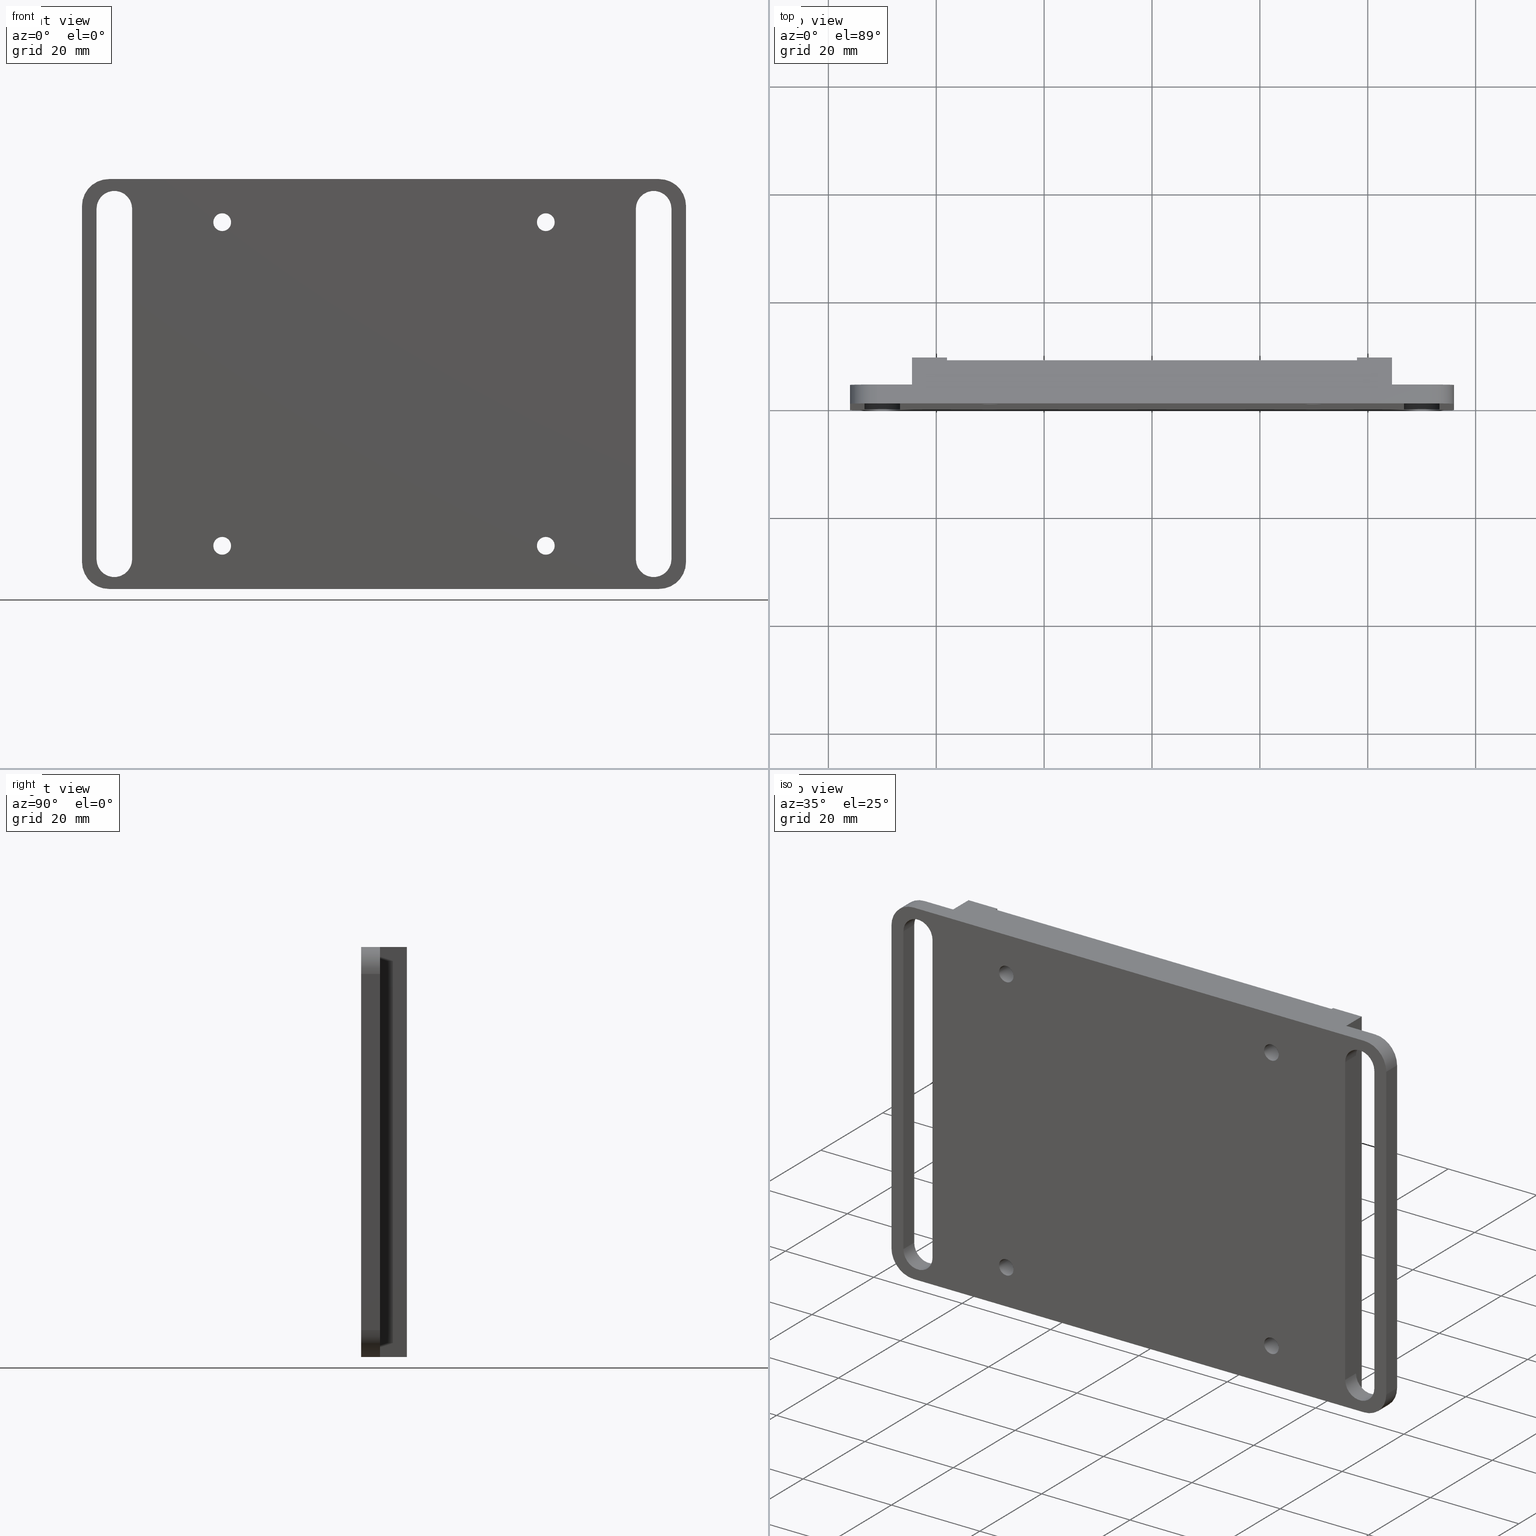
[diagram: canonical four-view strip — front | top / right | iso, engineering-drawing reading convention]
A machine part, canonical four-view strip (front | top / right | iso — engineering-drawing reading convention). The complete STEP part file that produces these views, byte-faithful:
ISO-10303-21;
HEADER;
FILE_DESCRIPTION (( 'STEP AP203' ),
    '1' );
FILE_NAME ('06HWS-1AM.STEP',
    '2023-08-17T06:27:38',
    ( '' ),
    ( '' ),
    'SwSTEP 2.0',
    'SolidWorks 2022',
    '' );
FILE_SCHEMA (( 'CONFIG_CONTROL_DESIGN' ));
ENDSEC;

DATA;
#1 = CARTESIAN_POINT ( 'NONE',  ( -44.50000000000000000, 8.500000000000023093, 38.00000000000000000 ) ) ;
#2 = CARTESIAN_POINT ( 'NONE',  ( 38.00000000000000000, 10.00000000000000000, -38.00000000000000000 ) ) ;
#3 = ORIENTED_EDGE ( 'NONE', *, *, #326, .F. ) ;
#4 = CARTESIAN_POINT ( 'NONE',  ( 53.30000000000003268, 0.000000000000000000, -32.50000000000000711 ) ) ;
#5 = VECTOR ( 'NONE', #423, 1000.000000000000000 ) ;
#6 = CIRCLE ( 'NONE', #526, 1.649999999999998579 ) ;
#7 = LINE ( 'NONE', #837, #236 ) ;
#8 = CARTESIAN_POINT ( 'NONE',  ( -51.00000000000000711, 3.499999999999999112, -33.00000000000000711 ) ) ;
#9 = VECTOR ( 'NONE', #736, 1000.000000000000000 ) ;
#10 = CARTESIAN_POINT ( 'NONE',  ( 29.99999999999981171, 8.000000000000001776, 30.00000000000000000 ) ) ;
#11 = DIRECTION ( 'NONE',  ( -1.577021341797097067E-16, 1.000000000000000000, 0.000000000000000000 ) ) ;
#12 = CARTESIAN_POINT ( 'NONE',  ( -30.00000000000002842, 8.000000000000001776, 30.00000000000000000 ) ) ;
#13 = EDGE_CURVE ( 'NONE', #1026, #1016, #717, .T. ) ;
#14 = CC_DESIGN_PERSON_AND_ORGANIZATION_ASSIGNMENT ( #44, #516, ( #55 ) ) ;
#15 = CYLINDRICAL_SURFACE ( 'NONE', #574, 1.649999999999998579 ) ;
#16 = FACE_BOUND ( 'NONE', #61, .T. ) ;
#17 = CARTESIAN_POINT ( 'NONE',  ( -56.00000000000000000, 3.499999999999998668, 38.00000000000000000 ) ) ;
#18 = DIRECTION ( 'NONE',  ( -1.000000000000000000, 2.668805347656626678E-16, 0.000000000000000000 ) ) ;
#19 = CARTESIAN_POINT ( 'NONE',  ( 38.00000000000000711, 8.000000000000001776, 38.00000000000000000 ) ) ;
#20 = EDGE_CURVE ( 'NONE', #997, #969, #66, .T. ) ;
#21 = DIRECTION ( 'NONE',  ( -1.000000000000000000, -1.577021341797093123E-16, 0.000000000000000000 ) ) ;
#22 = VECTOR ( 'NONE', #833, 1000.000000000000000 ) ;
#23 = AXIS2_PLACEMENT_3D ( 'NONE', #904, #338, #410 ) ;
#24 = CARTESIAN_POINT ( 'NONE',  ( 38.00000000000000000, 10.00000000000000000, 38.00000000000000000 ) ) ;
#25 = CIRCLE ( 'NONE', #999, 1.649999999999998579 ) ;
#26 = ORIENTED_EDGE ( 'NONE', *, *, #974, .F. ) ;
#27 = EDGE_CURVE ( 'NONE', #808, #719, #128, .T. ) ;
#28 = PLANE ( 'NONE',  #112 ) ;
#29 = CARTESIAN_POINT ( 'NONE',  ( -30.00000000000002842, 0.000000000000000000, 31.64999999999999858 ) ) ;
#30 = ORIENTED_EDGE ( 'NONE', *, *, #466, .F. ) ;
#31 = EDGE_LOOP ( 'NONE', ( #109, #642, #820, #635 ) ) ;
#32 = DIRECTION ( 'NONE',  ( 0.000000000000000000, 1.000000000000000000, 0.000000000000000000 ) ) ;
#33 = VERTEX_POINT ( 'NONE', #314 ) ;
#34 = ORIENTED_EDGE ( 'NONE', *, *, #472, .F. ) ;
#35 = EDGE_LOOP ( 'NONE', ( #211, #546, #1008, #745, #137, #828 ) ) ;
#36 = FACE_OUTER_BOUND ( 'NONE', #295, .T. ) ;
#37 = ORIENTED_EDGE ( 'NONE', *, *, #569, .F. ) ;
#38 = CIRCLE ( 'NONE', #214, 3.299999999999997158 ) ;
#39 = ORIENTED_EDGE ( 'NONE', *, *, #539, .T. ) ;
#40 = APPROVAL_PERSON_ORGANIZATION ( #220, #963, #936 ) ;
#41 = ADVANCED_FACE ( 'NONE', ( #871 ), #711, .F. ) ;
#42 = AXIS2_PLACEMENT_3D ( 'NONE', #50, #785, #301 ) ;
#43 = FACE_OUTER_BOUND ( 'NONE', #961, .T. ) ;
#44 = PERSON_AND_ORGANIZATION ( #980, #773 ) ;
#45 = EDGE_LOOP ( 'NONE', ( #1011 ) ) ;
#46 = ORIENTED_EDGE ( 'NONE', *, *, #685, .F. ) ;
#47 = LINE ( 'NONE', #923, #451 ) ;
#48 = APPROVAL_DATE_TIME ( #457, #161 ) ;
#49 = ORIENTED_EDGE ( 'NONE', *, *, #404, .T. ) ;
#50 = CARTESIAN_POINT ( 'NONE',  ( 50.00000000000004263, -8.673617379884035472E-16, -32.50000000000000000 ) ) ;
#51 = EDGE_CURVE ( 'NONE', #96, #611, #156, .T. ) ;
#52 = CARTESIAN_POINT ( 'NONE',  ( -44.50000000000000000, 3.500000000000000000, 38.00000000000000000 ) ) ;
#53 = CIRCLE ( 'NONE', #625, 4.999999999999997335 ) ;
#54 = VERTEX_POINT ( 'NONE', #620 ) ;
#55 = PRODUCT_DEFINITION_FORMATION_WITH_SPECIFIED_SOURCE ( 'ANY', '', #138, .NOT_KNOWN. ) ;
#56 = AXIS2_PLACEMENT_3D ( 'NONE', #360, #296, #603 ) ;
#57 = DIRECTION ( 'NONE',  ( 1.131341397376178325E-16, 1.000000000000000000, -0.000000000000000000 ) ) ;
#58 = EDGE_CURVE ( 'NONE', #458, #452, #786, .T. ) ;
#59 = ORIENTED_EDGE ( 'NONE', *, *, #389, .T. ) ;
#60 = DIRECTION ( 'NONE',  ( -0.000000000000000000, -0.000000000000000000, -1.000000000000000000 ) ) ;
#61 = EDGE_LOOP ( 'NONE', ( #650 ) ) ;
#62 = CARTESIAN_POINT ( 'NONE',  ( -53.30000000000003268, 3.499999999999999112, -32.50000000000000711 ) ) ;
#63 = EDGE_CURVE ( 'NONE', #607, #956, #775, .T. ) ;
#64 = CARTESIAN_POINT ( 'NONE',  ( -38.00000000000000711, 8.500000000000021316, -38.00000000000000000 ) ) ;
#65 = CYLINDRICAL_SURFACE ( 'NONE', #70, 1.649999999999998579 ) ;
#66 = LINE ( 'NONE', #460, #382 ) ;
#67 = FACE_OUTER_BOUND ( 'NONE', #699, .T. ) ;
#68 = EDGE_CURVE ( 'NONE', #1016, #781, #385, .T. ) ;
#69 = CARTESIAN_POINT ( 'NONE',  ( 46.70000000000003837, -1.301042606982605321E-15, -32.50000000000000000 ) ) ;
#70 = AXIS2_PLACEMENT_3D ( 'NONE', #708, #609, #243 ) ;
#71 = VECTOR ( 'NONE', #901, 1000.000000000000000 ) ;
#72 = LINE ( 'NONE', #899, #873 ) ;
#73 = AXIS2_PLACEMENT_3D ( 'NONE', #565, #723, #570 ) ;
#74 = VERTEX_POINT ( 'NONE', #172 ) ;
#75 = DIRECTION ( 'NONE',  ( 0.000000000000000000, -1.000000000000000000, 0.000000000000000000 ) ) ;
#76 = ORIENTED_EDGE ( 'NONE', *, *, #20, .T. ) ;
#77 = CARTESIAN_POINT ( 'NONE',  ( 56.00000000000000000, 0.000000000000000000, -33.00000000000000711 ) ) ;
#78 = FACE_OUTER_BOUND ( 'NONE', #733, .T. ) ;
#79 = DIRECTION ( 'NONE',  ( 1.000000000000000000, -8.673617379884040402E-17, 0.000000000000000000 ) ) ;
#80 = CARTESIAN_POINT ( 'NONE',  ( -46.70000000000004547, -1.604619215278546562E-14, 32.50000000000000000 ) ) ;
#81 = CARTESIAN_POINT ( 'NONE',  ( 29.99999999999981171, 8.000000000000001776, -30.00000000000000000 ) ) ;
#82 = EDGE_CURVE ( 'NONE', #229, #949, #498, .T. ) ;
#83 = LINE ( 'NONE', #409, #913 ) ;
#84 = FACE_OUTER_BOUND ( 'NONE', #240, .T. ) ;
#85 = CIRCLE ( 'NONE', #159, 4.999999999999997335 ) ;
#86 = CYLINDRICAL_SURFACE ( 'NONE', #860, 1.649999999999998579 ) ;
#87 = AXIS2_PLACEMENT_3D ( 'NONE', #195, #191, #439 ) ;
#88 = CARTESIAN_POINT ( 'NONE',  ( 38.00000000000000000, 10.00000000000000000, 38.00000000000000000 ) ) ;
#89 = CARTESIAN_POINT ( 'NONE',  ( -56.00000000000000000, 0.000000000000000000, 38.00000000000000000 ) ) ;
#90 = AXIS2_PLACEMENT_3D ( 'NONE', #88, #652, #894 ) ;
#91 = EDGE_CURVE ( 'NONE', #342, #342, #543, .T. ) ;
#92 = CC_DESIGN_PERSON_AND_ORGANIZATION_ASSIGNMENT ( #297, #135, ( #138 ) ) ;
#93 = LINE ( 'NONE', #502, #196 ) ;
#94 = DIRECTION ( 'NONE',  ( 0.000000000000000000, -1.000000000000000000, 0.000000000000000000 ) ) ;
#95 = DIRECTION ( 'NONE',  ( 1.000000000000000000, 0.000000000000000000, -0.000000000000000000 ) ) ;
#96 = VERTEX_POINT ( 'NONE', #489 ) ;
#97 = CYLINDRICAL_SURFACE ( 'NONE', #592, 5.000000000000000888 ) ;
#98 = EDGE_CURVE ( 'NONE', #221, #223, #977, .T. ) ;
#99 = LINE ( 'NONE', #19, #5 ) ;
#100 = ORIENTED_EDGE ( 'NONE', *, *, #763, .T. ) ;
#101 = CARTESIAN_POINT ( 'NONE',  ( -51.00000000000000711, 0.000000000000000000, -33.00000000000000711 ) ) ;
#102 = CARTESIAN_POINT ( 'NONE',  ( -30.00000000000002842, 8.000000000000001776, -28.35000000000000142 ) ) ;
#103 = DIRECTION ( 'NONE',  ( 0.000000000000000000, 0.000000000000000000, 1.000000000000000000 ) ) ;
#104 = ORIENTED_EDGE ( 'NONE', *, *, #437, .T. ) ;
#105 = ORIENTED_EDGE ( 'NONE', *, *, #298, .F. ) ;
#106 = EDGE_CURVE ( 'NONE', #783, #501, #454, .T. ) ;
#107 = LINE ( 'NONE', #1004, #1029 ) ;
#108 = CARTESIAN_POINT ( 'NONE',  ( 29.99999999999981171, 8.000000000000001776, 31.64999999999999858 ) ) ;
#109 = ORIENTED_EDGE ( 'NONE', *, *, #631, .T. ) ;
#110 = VECTOR ( 'NONE', #563, 1000.000000000000000 ) ;
#111 = ORIENTED_EDGE ( 'NONE', *, *, #953, .F. ) ;
#112 = AXIS2_PLACEMENT_3D ( 'NONE', #757, #681, #354 ) ;
#113 = CARTESIAN_POINT ( 'NONE',  ( 51.00000000000000711, 0.000000000000000000, -33.00000000000000711 ) ) ;
#114 = FACE_OUTER_BOUND ( 'NONE', #428, .T. ) ;
#115 = ORIENTED_EDGE ( 'NONE', *, *, #283, .T. ) ;
#116 = CARTESIAN_POINT ( 'NONE',  ( 46.70000000000003837, 3.500000000000012434, 32.50000000000000000 ) ) ;
#117 = APPROVAL_STATUS ( 'not_yet_approved' ) ;
#118 = ADVANCED_FACE ( 'NONE', ( #260 ), #661, .F. ) ;
#119 = EDGE_LOOP ( 'NONE', ( #263, #49, #343, #746, #193, #322, #795, #198 ) ) ;
#120 = ORIENTED_EDGE ( 'NONE', *, *, #889, .F. ) ;
#121 = CYLINDRICAL_SURFACE ( 'NONE', #145, 5.000000000000000888 ) ;
#122 = APPLICATION_PROTOCOL_DEFINITION ( 'international standard', 'config_control_design', 1994, #931 ) ;
#123 = VECTOR ( 'NONE', #735, 1000.000000000000000 ) ;
#124 = EDGE_LOOP ( 'NONE', ( #522, #120, #30, #3 ) ) ;
#125 = APPLICATION_CONTEXT ( 'configuration controlled 3d designs of mechanical parts and assemblies' ) ;
#126 = LOCAL_TIME ( 14, 27, 38.00000000000000000, #696 ) ;
#127 = ORIENTED_EDGE ( 'NONE', *, *, #847, .T. ) ;
#128 = CIRCLE ( 'NONE', #914, 5.000000000000000888 ) ;
#129 = AXIS2_PLACEMENT_3D ( 'NONE', #624, #378, #695 ) ;
#130 = LINE ( 'NONE', #279, #431 ) ;
#131 = CALENDAR_DATE ( 2023, 17, 8 ) ;
#132 = ORIENTED_EDGE ( 'NONE', *, *, #437, .F. ) ;
#133 = EDGE_CURVE ( 'NONE', #33, #529, #576, .T. ) ;
#134 = FACE_OUTER_BOUND ( 'NONE', #824, .T. ) ;
#135 = PERSON_AND_ORGANIZATION_ROLE ( 'design_owner' ) ;
#136 = ORIENTED_EDGE ( 'NONE', *, *, #986, .T. ) ;
#137 = ORIENTED_EDGE ( 'NONE', *, *, #877, .T. ) ;
#138 = PRODUCT ( '06HWS-1AM', '06HWS-1AM', '', ( #520 ) ) ;
#139 = EDGE_CURVE ( 'NONE', #427, #939, #994, .T. ) ;
#140 = DIRECTION ( 'NONE',  ( -1.131341397376178325E-16, -1.000000000000000000, 0.000000000000000000 ) ) ;
#141 = APPROVAL_DATE_TIME ( #777, #321 ) ;
#142 = DIRECTION ( 'NONE',  ( -0.000000000000000000, -0.000000000000000000, -1.000000000000000000 ) ) ;
#143 = AXIS2_PLACEMENT_3D ( 'NONE', #991, #481, #707 ) ;
#144 = VECTOR ( 'NONE', #75, 1000.000000000000000 ) ;
#145 = AXIS2_PLACEMENT_3D ( 'NONE', #113, #32, #1019 ) ;
#146 = CARTESIAN_POINT ( 'NONE',  ( 51.00000000000000711, 0.000000000000000000, 33.00000000000000000 ) ) ;
#147 = CARTESIAN_POINT ( 'NONE',  ( 38.00000000000000000, 8.500000000000000000, -38.00000000000000000 ) ) ;
#148 = ORIENTED_EDGE ( 'NONE', *, *, #302, .F. ) ;
#149 = CARTESIAN_POINT ( 'NONE',  ( 46.70000000000003837, 3.500000000000012434, -32.50000000000000000 ) ) ;
#150 = ORIENTED_EDGE ( 'NONE', *, *, #691, .F. ) ;
#151 = FACE_OUTER_BOUND ( 'NONE', #35, .T. ) ;
#152 = ADVANCED_FACE ( 'NONE', ( #424, #503, #16, #405, #579 ), #821, .F. ) ;
#153 = ORIENTED_EDGE ( 'NONE', *, *, #1046, .T. ) ;
#154 = DIRECTION ( 'NONE',  ( -0.000000000000000000, -0.000000000000000000, -1.000000000000000000 ) ) ;
#155 = DIRECTION ( 'NONE',  ( -0.000000000000000000, -0.000000000000000000, -1.000000000000000000 ) ) ;
#156 = LINE ( 'NONE', #147, #527 ) ;
#157 = LINE ( 'NONE', #887, #144 ) ;
#158 = CARTESIAN_POINT ( 'NONE',  ( 51.00000000000000711, 0.000000000000000000, -38.00000000000000000 ) ) ;
#159 = AXIS2_PLACEMENT_3D ( 'NONE', #146, #320, #622 ) ;
#160 = VECTOR ( 'NONE', #572, 1000.000000000000000 ) ;
#161 = APPROVAL ( #525, 'UNSPECIFIED' ) ;
#162 = LINE ( 'NONE', #982, #411 ) ;
#163 = AXIS2_PLACEMENT_3D ( 'NONE', #1014, #364, #513 ) ;
#164 = DIRECTION ( 'NONE',  ( 1.131341397376178325E-16, 1.000000000000000000, -0.000000000000000000 ) ) ;
#165 = CARTESIAN_POINT ( 'NONE',  ( -53.30000000000003268, -1.691355389077386917E-14, -32.50000000000000000 ) ) ;
#166 = ADVANCED_FACE ( 'NONE', ( #644 ), #414, .F. ) ;
#167 = LINE ( 'NONE', #1057, #316 ) ;
#168 = PLANE ( 'NONE',  #336 ) ;
#169 = PLANE ( 'NONE',  #845 ) ;
#170 = FACE_OUTER_BOUND ( 'NONE', #688, .T. ) ;
#171 = EDGE_CURVE ( 'NONE', #858, #286, #272, .T. ) ;
#172 = CARTESIAN_POINT ( 'NONE',  ( 56.00000000000000000, 0.000000000000000000, 33.00000000000000000 ) ) ;
#173 = DIRECTION ( 'NONE',  ( 2.668805347656626678E-16, 1.000000000000000000, -0.000000000000000000 ) ) ;
#174 = VECTOR ( 'NONE', #993, 1000.000000000000000 ) ;
#175 = CARTESIAN_POINT ( 'NONE',  ( -53.30000000000003268, -1.691355389077386917E-14, -32.50000000000000000 ) ) ;
#176 = VECTOR ( 'NONE', #155, 1000.000000000000000 ) ;
#177 = DIRECTION ( 'NONE',  ( 0.000000000000000000, 1.000000000000000000, 0.000000000000000000 ) ) ;
#178 = VERTEX_POINT ( 'NONE', #588 ) ;
#179 = VECTOR ( 'NONE', #955, 1000.000000000000000 ) ;
#180 = EDGE_CURVE ( 'NONE', #658, #658, #25, .T. ) ;
#181 = EDGE_LOOP ( 'NONE', ( #843 ) ) ;
#182 = CARTESIAN_POINT ( 'NONE',  ( 38.00000000000000000, 8.500000000000000000, 38.00000000000000000 ) ) ;
#183 = VERTEX_POINT ( 'NONE', #1 ) ;
#184 = FACE_OUTER_BOUND ( 'NONE', #377, .T. ) ;
#185 = CARTESIAN_POINT ( 'NONE',  ( -56.00000000000000000, 0.000000000000000000, 33.00000000000000000 ) ) ;
#186 = CARTESIAN_POINT ( 'NONE',  ( 29.99999999999981171, 0.000000000000000000, -28.35000000000000142 ) ) ;
#187 = CARTESIAN_POINT ( 'NONE',  ( 53.30000000000003979, 3.500000000000013323, -32.50000000000000000 ) ) ;
#188 = ADVANCED_FACE ( 'NONE', ( #988 ), #168, .F. ) ;
#189 = VERTEX_POINT ( 'NONE', #185 ) ;
#190 = CARTESIAN_POINT ( 'NONE',  ( -44.50000000000000000, 8.500000000000023093, -38.00000000000000000 ) ) ;
#191 = DIRECTION ( 'NONE',  ( 0.000000000000000000, -1.000000000000000000, 0.000000000000000000 ) ) ;
#192 = DIRECTION ( 'NONE',  ( -1.577021341797097067E-16, 1.000000000000000000, -0.000000000000000000 ) ) ;
#193 = ORIENTED_EDGE ( 'NONE', *, *, #722, .T. ) ;
#194 = CYLINDRICAL_SURFACE ( 'NONE', #896, 3.299999999999997158 ) ;
#195 = CARTESIAN_POINT ( 'NONE',  ( -51.00000000000000711, 3.499999999999998668, -33.00000000000000711 ) ) ;
#196 = VECTOR ( 'NONE', #902, 1000.000000000000000 ) ;
#197 = VECTOR ( 'NONE', #285, 1000.000000000000000 ) ;
#198 = ORIENTED_EDGE ( 'NONE', *, *, #472, .T. ) ;
#199 = AXIS2_PLACEMENT_3D ( 'NONE', #742, #11, #21 ) ;
#200 = EDGE_LOOP ( 'NONE', ( #148, #1017, #299, #441 ) ) ;
#201 = EDGE_LOOP ( 'NONE', ( #548, #992, #446, #952 ) ) ;
#202 = EDGE_CURVE ( 'NONE', #327, #288, #83, .T. ) ;
#203 = ORIENTED_EDGE ( 'NONE', *, *, #133, .F. ) ;
#204 = DIRECTION ( 'NONE',  ( 0.000000000000000000, 0.000000000000000000, 1.000000000000000000 ) ) ;
#205 = DATE_TIME_ROLE ( 'creation_date' ) ;
#206 = EDGE_LOOP ( 'NONE', ( #567, #665, #985, #869 ) ) ;
#207 = ORIENTED_EDGE ( 'NONE', *, *, #180, .F. ) ;
#208 = EDGE_CURVE ( 'NONE', #774, #33, #7, .T. ) ;
#209 = CARTESIAN_POINT ( 'NONE',  ( 44.50000000000000000, 3.500000000000000000, -38.00000000000000000 ) ) ;
#210 = PERSON_AND_ORGANIZATION ( #980, #773 ) ;
#211 = ORIENTED_EDGE ( 'NONE', *, *, #480, .F. ) ;
#212 = CARTESIAN_POINT ( 'NONE',  ( 51.00000000000000711, 0.000000000000000000, 38.00000000000000000 ) ) ;
#213 = DATE_TIME_ROLE ( 'classification_date' ) ;
#214 = AXIS2_PLACEMENT_3D ( 'NONE', #349, #748, #836 ) ;
#215 = VERTEX_POINT ( 'NONE', #499 ) ;
#216 = VECTOR ( 'NONE', #256, 1000.000000000000000 ) ;
#217 = EDGE_CURVE ( 'NONE', #362, #443, #979, .T. ) ;
#218 = AXIS2_PLACEMENT_3D ( 'NONE', #749, #972, #825 ) ;
#219 = CARTESIAN_POINT ( 'NONE',  ( -56.00000000000000000, 0.000000000000000000, 38.00000000000000000 ) ) ;
#220 = PERSON_AND_ORGANIZATION ( #980, #773 ) ;
#221 = VERTEX_POINT ( 'NONE', #419 ) ;
#222 = ADVANCED_FACE ( 'NONE', ( #346, #43 ), #438, .F. ) ;
#223 = VERTEX_POINT ( 'NONE', #761 ) ;
#224 = FACE_BOUND ( 'NONE', #844, .T. ) ;
#225 = COORDINATED_UNIVERSAL_TIME_OFFSET ( 8, 0, .AHEAD. ) ;
#226 = ORIENTED_EDGE ( 'NONE', *, *, #698, .F. ) ;
#227 = ORIENTED_EDGE ( 'NONE', *, *, #68, .F. ) ;
#228 = DIRECTION ( 'NONE',  ( 0.000000000000000000, 0.000000000000000000, 1.000000000000000000 ) ) ;
#229 = VERTEX_POINT ( 'NONE', #841 ) ;
#230 = CARTESIAN_POINT ( 'NONE',  ( -51.00000000000000711, 3.499999999999999112, 38.00000000000000000 ) ) ;
#231 = DIRECTION ( 'NONE',  ( 0.000000000000000000, 0.000000000000000000, 1.000000000000000000 ) ) ;
#232 = CIRCLE ( 'NONE', #678, 1.649999999999998579 ) ;
#233 = CIRCLE ( 'NONE', #304, 1.649999999999998579 ) ;
#234 = DESIGN_CONTEXT ( 'detailed design', #931, 'design' ) ;
#235 = VECTOR ( 'NONE', #978, 1000.000000000000000 ) ;
#236 = VECTOR ( 'NONE', #983, 1000.000000000000000 ) ;
#237 = DIRECTION ( 'NONE',  ( 1.000000000000000000, -8.673617379884040402E-17, 0.000000000000000000 ) ) ;
#238 = EDGE_CURVE ( 'NONE', #529, #808, #130, .T. ) ;
#239 = EDGE_LOOP ( 'NONE', ( #39, #856, #509, #358 ) ) ;
#240 = EDGE_LOOP ( 'NONE', ( #1034, #308, #782, #882, #897, #700, #368, #491, #475, #613, #115, #596 ) ) ;
#241 = DIRECTION ( 'NONE',  ( 1.000000000000000000, 1.131341397376178325E-16, 0.000000000000000000 ) ) ;
#242 = CARTESIAN_POINT ( 'NONE',  ( -46.70000000000003837, 3.499999999999997780, -32.50000000000000000 ) ) ;
#243 = DIRECTION ( 'NONE',  ( 0.000000000000000000, 0.000000000000000000, 1.000000000000000000 ) ) ;
#244 = EDGE_LOOP ( 'NONE', ( #1032, #105, #941, #407 ) ) ;
#245 = LINE ( 'NONE', #471, #110 ) ;
#246 = ORIENTED_EDGE ( 'NONE', *, *, #493, .F. ) ;
#247 = PRODUCT_RELATED_PRODUCT_CATEGORY ( 'detail', '', ( #138 ) ) ;
#248 = CARTESIAN_POINT ( 'NONE',  ( -53.30000000000003268, -1.691355389077386917E-14, 32.50000000000000000 ) ) ;
#249 = DIRECTION ( 'NONE',  ( -0.000000000000000000, 1.000000000000000000, -0.000000000000000000 ) ) ;
#250 = CARTESIAN_POINT ( 'NONE',  ( -38.00000000000000711, 8.000000000000001776, 38.00000000000000000 ) ) ;
#251 = DIRECTION ( 'NONE',  ( -1.000000000000000000, 1.131341397376178325E-16, 0.000000000000000000 ) ) ;
#252 = ORIENTED_EDGE ( 'NONE', *, *, #937, .F. ) ;
#253 = VECTOR ( 'NONE', #669, 1000.000000000000000 ) ;
#254 = CARTESIAN_POINT ( 'NONE',  ( -51.00000000000000711, 3.499999999999999112, -38.00000000000000000 ) ) ;
#255 = DIRECTION ( 'NONE',  ( -0.000000000000000000, 1.000000000000000000, -0.000000000000000000 ) ) ;
#256 = DIRECTION ( 'NONE',  ( -1.000000000000000000, 2.668805347656626678E-16, -0.000000000000000000 ) ) ;
#257 = ADVANCED_FACE ( 'NONE', ( #686 ), #28, .F. ) ;
#258 = VERTEX_POINT ( 'NONE', #524 ) ;
#259 = DIRECTION ( 'NONE',  ( -0.000000000000000000, 1.000000000000000000, -0.000000000000000000 ) ) ;
#260 = FACE_OUTER_BOUND ( 'NONE', #921, .T. ) ;
#261 = CARTESIAN_POINT ( 'NONE',  ( 44.50000000000000000, 3.500000000000000000, 38.00000000000000000 ) ) ;
#262 = ORIENTED_EDGE ( 'NONE', *, *, #363, .T. ) ;
#263 = ORIENTED_EDGE ( 'NONE', *, *, #797, .F. ) ;
#264 = DIRECTION ( 'NONE',  ( -1.000000000000000000, 0.000000000000000000, 0.000000000000000000 ) ) ;
#265 = DIRECTION ( 'NONE',  ( -1.000000000000000000, 1.131341397376178325E-16, 0.000000000000000000 ) ) ;
#266 = CARTESIAN_POINT ( 'NONE',  ( -53.30000000000003268, -1.691355389077386917E-14, -32.50000000000000000 ) ) ;
#267 = DIRECTION ( 'NONE',  ( -1.000000000000000000, -1.577021341797093123E-16, 0.000000000000000000 ) ) ;
#268 = ORIENTED_EDGE ( 'NONE', *, *, #326, .T. ) ;
#269 = AXIS2_PLACEMENT_3D ( 'NONE', #307, #950, #403 ) ;
#270 = LINE ( 'NONE', #340, #709 ) ;
#271 = ADVANCED_FACE ( 'NONE', ( #36 ), #371, .F. ) ;
#272 = LINE ( 'NONE', #483, #792 ) ;
#273 =( NAMED_UNIT ( * ) PLANE_ANGLE_UNIT ( ) SI_UNIT ( $, .RADIAN. ) );
#274 = AXIS2_PLACEMENT_3D ( 'NONE', #794, #140, #461 ) ;
#275 = CARTESIAN_POINT ( 'NONE',  ( -51.00000000000000711, 0.000000000000000000, 38.00000000000000000 ) ) ;
#276 = DIRECTION ( 'NONE',  ( 1.577021341797097067E-16, -1.000000000000000000, 0.000000000000000000 ) ) ;
#277 = CARTESIAN_POINT ( 'NONE',  ( 29.99999999999981171, 8.000000000000001776, -28.35000000000000142 ) ) ;
#278 = DIRECTION ( 'NONE',  ( -0.000000000000000000, -0.000000000000000000, -1.000000000000000000 ) ) ;
#279 = CARTESIAN_POINT ( 'NONE',  ( 51.00000000000000711, 0.000000000000000000, -38.00000000000000000 ) ) ;
#280 = VERTEX_POINT ( 'NONE', #108 ) ;
#281 = EDGE_LOOP ( 'NONE', ( #591, #1006, #150, #639 ) ) ;
#282 = ORIENTED_EDGE ( 'NONE', *, *, #655, .F. ) ;
#283 = EDGE_CURVE ( 'NONE', #339, #221, #293, .T. ) ;
#284 = DIRECTION ( 'NONE',  ( -1.000000000000000000, -1.577021341797097067E-16, 0.000000000000000000 ) ) ;
#285 = DIRECTION ( 'NONE',  ( -1.577021341797097067E-16, 1.000000000000000000, -0.000000000000000000 ) ) ;
#286 = VERTEX_POINT ( 'NONE', #456 ) ;
#287 = VECTOR ( 'NONE', #712, 1000.000000000000000 ) ;
#288 = VERTEX_POINT ( 'NONE', #849 ) ;
#289 = VECTOR ( 'NONE', #853, 1000.000000000000000 ) ;
#290 = ADVANCED_FACE ( 'NONE', ( #587 ), #194, .F. ) ;
#291 = ADVANCED_BREP_SHAPE_REPRESENTATION ( '06HWS-1AM', ( #615, #610 ), #350 ) ;
#292 = VERTEX_POINT ( 'NONE', #190 ) ;
#293 = LINE ( 'NONE', #857, #928 ) ;
#294 = DIRECTION ( 'NONE',  ( 0.000000000000000000, 0.000000000000000000, 1.000000000000000000 ) ) ;
#295 = EDGE_LOOP ( 'NONE', ( #268, #623, #46, #127 ) ) ;
#296 = DIRECTION ( 'NONE',  ( -1.577021341797097067E-16, 1.000000000000000000, -0.000000000000000000 ) ) ;
#297 = PERSON_AND_ORGANIZATION ( #980, #773 ) ;
#298 = EDGE_CURVE ( 'NONE', #725, #501, #47, .T. ) ;
#299 = ORIENTED_EDGE ( 'NONE', *, *, #906, .T. ) ;
#300 = ORIENTED_EDGE ( 'NONE', *, *, #877, .F. ) ;
#301 = DIRECTION ( 'NONE',  ( 1.000000000000000000, 1.577021341797097314E-16, 0.000000000000000000 ) ) ;
#302 = EDGE_CURVE ( 'NONE', #54, #288, #107, .T. ) ;
#303 = ORIENTED_EDGE ( 'NONE', *, *, #180, .T. ) ;
#304 = AXIS2_PLACEMENT_3D ( 'NONE', #805, #867, #459 ) ;
#305 = ORIENTED_EDGE ( 'NONE', *, *, #966, .T. ) ;
#306 = AXIS2_PLACEMENT_3D ( 'NONE', #462, #380, #793 ) ;
#307 = CARTESIAN_POINT ( 'NONE',  ( -51.00000000000000711, 3.499999999999999112, 33.00000000000000000 ) ) ;
#308 = ORIENTED_EDGE ( 'NONE', *, *, #763, .F. ) ;
#309 = LINE ( 'NONE', #965, #862 ) ;
#310 = DIRECTION ( 'NONE',  ( -1.000000000000000000, 0.000000000000000000, 0.000000000000000000 ) ) ;
#311 = ORIENTED_EDGE ( 'NONE', *, *, #847, .F. ) ;
#312 = ADVANCED_FACE ( 'NONE', ( #668 ), #121, .T. ) ;
#313 = CARTESIAN_POINT ( 'NONE',  ( 29.99999999999981171, 8.000000000000001776, -30.00000000000000000 ) ) ;
#314 = CARTESIAN_POINT ( 'NONE',  ( 56.00000000000000000, 3.499999999999998668, -33.00000000000000711 ) ) ;
#315 = FACE_OUTER_BOUND ( 'NONE', #840, .T. ) ;
#316 = VECTOR ( 'NONE', #330, 1000.000000000000000 ) ;
#317 = LOCAL_TIME ( 14, 27, 38.00000000000000000, #600 ) ;
#318 = DIRECTION ( 'NONE',  ( 0.000000000000000000, -1.000000000000000000, 0.000000000000000000 ) ) ;
#319 = AXIS2_PLACEMENT_3D ( 'NONE', #494, #728, #562 ) ;
#320 = DIRECTION ( 'NONE',  ( -0.000000000000000000, -1.000000000000000000, -0.000000000000000000 ) ) ;
#321 = APPROVAL ( #780, 'UNSPECIFIED' ) ;
#322 = ORIENTED_EDGE ( 'NONE', *, *, #27, .T. ) ;
#323 = DIRECTION ( 'NONE',  ( -1.000000000000000000, 3.469446951953616950E-15, 0.000000000000000000 ) ) ;
#324 = LINE ( 'NONE', #248, #160 ) ;
#325 = LINE ( 'NONE', #175, #366 ) ;
#326 = EDGE_CURVE ( 'NONE', #969, #286, #697, .T. ) ;
#327 = VERTEX_POINT ( 'NONE', #209 ) ;
#328 = CARTESIAN_POINT ( 'NONE',  ( 38.00000000000000000, 8.500000000000000000, -38.00000000000000000 ) ) ;
#329 = DIRECTION ( 'NONE',  ( 1.000000000000000000, -2.668805347656626678E-16, 0.000000000000000000 ) ) ;
#330 = DIRECTION ( 'NONE',  ( -0.000000000000000000, -1.000000000000000000, -0.000000000000000000 ) ) ;
#331 = DIRECTION ( 'NONE',  ( 1.000000000000000000, 1.577021341797097067E-16, -0.000000000000000000 ) ) ;
#332 = LINE ( 'NONE', #645, #235 ) ;
#333 = ADVANCED_FACE ( 'NONE', ( #942 ), #675, .F. ) ;
#334 = EDGE_LOOP ( 'NONE', ( #353, #132, #835, #626 ) ) ;
#335 = CARTESIAN_POINT ( 'NONE',  ( 44.50000000000000000, 3.500000000000000000, 38.00000000000000000 ) ) ;
#336 = AXIS2_PLACEMENT_3D ( 'NONE', #916, #331, #907 ) ;
#337 = DIRECTION ( 'NONE',  ( 0.000000000000000000, -0.000000000000000000, -1.000000000000000000 ) ) ;
#338 = DIRECTION ( 'NONE',  ( -0.000000000000000000, 0.000000000000000000, 1.000000000000000000 ) ) ;
#339 = VERTEX_POINT ( 'NONE', #212 ) ;
#340 = CARTESIAN_POINT ( 'NONE',  ( 46.70000000000003837, -1.301042606982605321E-15, -32.50000000000000000 ) ) ;
#341 = DIRECTION ( 'NONE',  ( -1.577021341797097067E-16, 1.000000000000000000, -0.000000000000000000 ) ) ;
#342 = VERTEX_POINT ( 'NONE', #29 ) ;
#343 = ORIENTED_EDGE ( 'NONE', *, *, #398, .T. ) ;
#344 = ADVANCED_FACE ( 'NONE', ( #863 ), #444, .F. ) ;
#345 = CARTESIAN_POINT ( 'NONE',  ( -30.00000000000002842, 8.000000000000001776, -30.00000000000000000 ) ) ;
#346 = FACE_OUTER_BOUND ( 'NONE', #517, .T. ) ;
#347 = CARTESIAN_POINT ( 'NONE',  ( 46.70000000000003837, -1.301042606982605321E-15, 32.50000000000000000 ) ) ;
#348 = DIRECTION ( 'NONE',  ( 0.000000000000000000, -1.000000000000000000, 0.000000000000000000 ) ) ;
#349 = CARTESIAN_POINT ( 'NONE',  ( -50.00000000000004263, -1.647987302177966740E-14, 32.50000000000000000 ) ) ;
#350 =( GEOMETRIC_REPRESENTATION_CONTEXT ( 3 ) GLOBAL_UNCERTAINTY_ASSIGNED_CONTEXT ( ( #1039 ) ) GLOBAL_UNIT_ASSIGNED_CONTEXT ( ( #662, #273, #750 ) ) REPRESENTATION_CONTEXT ( 'NONE', 'WORKASPACE' ) );
#351 = CARTESIAN_POINT ( 'NONE',  ( 51.00000000000000711, 3.499999999999999112, -33.00000000000000711 ) ) ;
#352 = DIRECTION ( 'NONE',  ( 2.668805347656626678E-16, 1.000000000000000000, -0.000000000000000000 ) ) ;
#353 = ORIENTED_EDGE ( 'NONE', *, *, #521, .F. ) ;
#354 = DIRECTION ( 'NONE',  ( 0.000000000000000000, 0.000000000000000000, 1.000000000000000000 ) ) ;
#355 = FACE_BOUND ( 'NONE', #768, .T. ) ;
#356 = EDGE_CURVE ( 'NONE', #781, #798, #594, .T. ) ;
#357 = VERTEX_POINT ( 'NONE', #583 ) ;
#358 = ORIENTED_EDGE ( 'NONE', *, *, #375, .T. ) ;
#359 = VERTEX_POINT ( 'NONE', #116 ) ;
#360 = CARTESIAN_POINT ( 'NONE',  ( -50.00000000000004263, 3.499999999999997335, 32.50000000000000000 ) ) ;
#361 = ORIENTED_EDGE ( 'NONE', *, *, #510, .F. ) ;
#362 = VERTEX_POINT ( 'NONE', #766 ) ;
#363 = EDGE_CURVE ( 'NONE', #74, #719, #537, .T. ) ;
#364 = DIRECTION ( 'NONE',  ( -1.577021341797097067E-16, 1.000000000000000000, -0.000000000000000000 ) ) ;
#365 = CARTESIAN_POINT ( 'NONE',  ( 0.000000000000000000, 0.000000000000000000, 0.000000000000000000 ) ) ;
#366 = VECTOR ( 'NONE', #497, 1000.000000000000000 ) ;
#367 = VECTOR ( 'NONE', #705, 1000.000000000000000 ) ;
#368 = ORIENTED_EDGE ( 'NONE', *, *, #881, .T. ) ;
#369 = AXIS2_PLACEMENT_3D ( 'NONE', #465, #544, #383 ) ;
#370 = ADVANCED_FACE ( 'NONE', ( #474 ), #703, .F. ) ;
#371 = CYLINDRICAL_SURFACE ( 'NONE', #163, 3.299999999999997158 ) ;
#372 = APPLICATION_PROTOCOL_DEFINITION ( 'international standard', 'config_control_design', 1994, #125 ) ;
#373 = ORIENTED_EDGE ( 'NONE', *, *, #1053, .F. ) ;
#374 = ORIENTED_EDGE ( 'NONE', *, *, #298, .T. ) ;
#375 = EDGE_CURVE ( 'NONE', #619, #725, #960, .T. ) ;
#376 = LINE ( 'NONE', #789, #397 ) ;
#377 = EDGE_LOOP ( 'NONE', ( #59 ) ) ;
#378 = DIRECTION ( 'NONE',  ( -0.000000000000000000, -1.000000000000000000, -0.000000000000000000 ) ) ;
#379 = VECTOR ( 'NONE', #278, 1000.000000000000000 ) ;
#380 = DIRECTION ( 'NONE',  ( -1.577021341797097067E-16, 1.000000000000000000, 0.000000000000000000 ) ) ;
#381 = VECTOR ( 'NONE', #895, 1000.000000000000000 ) ;
#382 = VECTOR ( 'NONE', #228, 1000.000000000000000 ) ;
#383 = DIRECTION ( 'NONE',  ( -1.577021341797097067E-16, 1.000000000000000000, 0.000000000000000000 ) ) ;
#384 = CALENDAR_DATE ( 2023, 17, 8 ) ;
#385 = LINE ( 'NONE', #702, #464 ) ;
#386 = DIRECTION ( 'NONE',  ( -0.000000000000000000, -0.000000000000000000, -1.000000000000000000 ) ) ;
#387 = ORIENTED_EDGE ( 'NONE', *, *, #866, .F. ) ;
#388 = DIRECTION ( 'NONE',  ( 0.000000000000000000, 0.000000000000000000, 1.000000000000000000 ) ) ;
#389 = EDGE_CURVE ( 'NONE', #672, #672, #232, .T. ) ;
#390 = LINE ( 'NONE', #800, #788 ) ;
#391 = CC_DESIGN_PERSON_AND_ORGANIZATION_ASSIGNMENT ( #617, #682, ( #55 ) ) ;
#392 = LINE ( 'NONE', #689, #530 ) ;
#393 = DIRECTION ( 'NONE',  ( -0.000000000000000000, -1.000000000000000000, -0.000000000000000000 ) ) ;
#394 = DIRECTION ( 'NONE',  ( -3.469446951953616950E-15, -1.000000000000000000, 0.000000000000000000 ) ) ;
#395 = AXIS2_PLACEMENT_3D ( 'NONE', #962, #815, #241 ) ;
#396 = FACE_OUTER_BOUND ( 'NONE', #514, .T. ) ;
#397 = VECTOR ( 'NONE', #531, 1000.000000000000000 ) ;
#398 = EDGE_CURVE ( 'NONE', #189, #362, #1023, .T. ) ;
#399 = CARTESIAN_POINT ( 'NONE',  ( 50.00000000000004263, 3.500000000000012879, 32.50000000000000000 ) ) ;
#400 = EDGE_LOOP ( 'NONE', ( #551, #282, #799, #938 ) ) ;
#401 = CARTESIAN_POINT ( 'NONE',  ( 53.30000000000003268, -4.336808689942017736E-16, 32.50000000000000000 ) ) ;
#402 = CARTESIAN_POINT ( 'NONE',  ( 56.00000000000000000, 3.499999999999998668, 33.00000000000000000 ) ) ;
#403 = DIRECTION ( 'NONE',  ( 1.000000000000000000, 8.673617379884040402E-17, 0.000000000000000000 ) ) ;
#404 = EDGE_CURVE ( 'NONE', #1021, #189, #714, .T. ) ;
#405 = FACE_BOUND ( 'NONE', #726, .T. ) ;
#406 = DIRECTION ( 'NONE',  ( -1.577021341797097067E-16, 1.000000000000000000, 0.000000000000000000 ) ) ;
#407 = ORIENTED_EDGE ( 'NONE', *, *, #660, .T. ) ;
#408 = CARTESIAN_POINT ( 'NONE',  ( 46.70000000000003837, -1.301042606982605321E-15, 32.50000000000000000 ) ) ;
#409 = CARTESIAN_POINT ( 'NONE',  ( 44.50000000000000000, 3.500000000000000000, -38.00000000000000000 ) ) ;
#410 = DIRECTION ( 'NONE',  ( 1.000000000000000000, 0.000000000000000000, 0.000000000000000000 ) ) ;
#411 = VECTOR ( 'NONE', #643, 1000.000000000000000 ) ;
#412 = AXIS2_PLACEMENT_3D ( 'NONE', #17, #95, #924 ) ;
#413 = CARTESIAN_POINT ( 'NONE',  ( 53.30000000000003979, -4.336808689942017736E-16, -32.50000000000000000 ) ) ;
#414 = PLANE ( 'NONE',  #73 ) ;
#415 = DIRECTION ( 'NONE',  ( 0.000000000000000000, 1.000000000000000000, 0.000000000000000000 ) ) ;
#416 = ORIENTED_EDGE ( 'NONE', *, *, #417, .T. ) ;
#417 = EDGE_CURVE ( 'NONE', #989, #989, #1048, .T. ) ;
#418 = LINE ( 'NONE', #716, #560 ) ;
#419 = CARTESIAN_POINT ( 'NONE',  ( 51.00000000000000711, 3.499999999999999112, 38.00000000000000000 ) ) ;
#420 = CARTESIAN_POINT ( 'NONE',  ( -30.00000000000002842, 0.000000000000000000, -28.35000000000000142 ) ) ;
#421 = CARTESIAN_POINT ( 'NONE',  ( 51.00000000000000711, 0.000000000000000000, 33.00000000000000000 ) ) ;
#422 = CC_DESIGN_DATE_AND_TIME_ASSIGNMENT ( #1031, #213, ( #1045 ) ) ;
#423 = DIRECTION ( 'NONE',  ( -1.000000000000000000, 0.000000000000000000, 0.000000000000000000 ) ) ;
#424 = FACE_BOUND ( 'NONE', #848, .T. ) ;
#425 = DIRECTION ( 'NONE',  ( -1.000000000000000000, 2.668805347656626678E-16, 0.000000000000000000 ) ) ;
#426 = CYLINDRICAL_SURFACE ( 'NONE', #143, 4.999999999999997335 ) ;
#427 = VERTEX_POINT ( 'NONE', #801 ) ;
#428 = EDGE_LOOP ( 'NONE', ( #654, #100, #865, #601 ) ) ;
#429 = CC_DESIGN_APPROVAL ( #161, ( #1045 ) ) ;
#430 = ADVANCED_FACE ( 'NONE', ( #224, #870 ), #1047, .F. ) ;
#431 = VECTOR ( 'NONE', #935, 1000.000000000000000 ) ;
#432 = CARTESIAN_POINT ( 'NONE',  ( -30.00000000000002842, 8.000000000000001776, 30.00000000000000000 ) ) ;
#433 = FACE_BOUND ( 'NONE', #684, .T. ) ;
#434 = EDGE_LOOP ( 'NONE', ( #926, #26, #518, #945 ) ) ;
#435 = EDGE_LOOP ( 'NONE', ( #534, #436, #305, #874, #770, #1022 ) ) ;
#436 = ORIENTED_EDGE ( 'NONE', *, *, #133, .T. ) ;
#437 = EDGE_CURVE ( 'NONE', #189, #215, #309, .T. ) ;
#438 = CYLINDRICAL_SURFACE ( 'NONE', #479, 1.649999999999998579 ) ;
#439 = DIRECTION ( 'NONE',  ( 0.000000000000000000, 0.000000000000000000, -1.000000000000000000 ) ) ;
#440 = EDGE_LOOP ( 'NONE', ( #207 ) ) ;
#441 = ORIENTED_EDGE ( 'NONE', *, *, #202, .T. ) ;
#442 = ORIENTED_EDGE ( 'NONE', *, *, #698, .T. ) ;
#443 = VERTEX_POINT ( 'NONE', #1035 ) ;
#444 = PLANE ( 'NONE',  #878 ) ;
#445 = SECURITY_CLASSIFICATION_LEVEL ( 'unclassified' ) ;
#446 = ORIENTED_EDGE ( 'NONE', *, *, #82, .F. ) ;
#447 = AXIS2_PLACEMENT_3D ( 'NONE', #399, #1052, #492 ) ;
#448 = DIRECTION ( 'NONE',  ( -0.000000000000000000, 1.000000000000000000, -0.000000000000000000 ) ) ;
#449 = APPROVAL_ROLE ( '' ) ;
#450 = CC_DESIGN_APPROVAL ( #321, ( #55 ) ) ;
#451 = VECTOR ( 'NONE', #515, 1000.000000000000000 ) ;
#452 = VERTEX_POINT ( 'NONE', #630 ) ;
#453 = ORIENTED_EDGE ( 'NONE', *, *, #812, .F. ) ;
#454 = CIRCLE ( 'NONE', #218, 3.299999999999997158 ) ;
#455 = EDGE_CURVE ( 'NONE', #939, #798, #376, .T. ) ;
#456 = CARTESIAN_POINT ( 'NONE',  ( -46.70000000000004547, 3.499999999999997780, 32.50000000000000000 ) ) ;
#457 = DATE_AND_TIME ( #131, #126 ) ;
#458 = VERTEX_POINT ( 'NONE', #954 ) ;
#459 = DIRECTION ( 'NONE',  ( 0.000000000000000000, 0.000000000000000000, 1.000000000000000000 ) ) ;
#460 = CARTESIAN_POINT ( 'NONE',  ( -53.30000000000003268, 3.499999999999996891, -32.50000000000000000 ) ) ;
#461 = DIRECTION ( 'NONE',  ( 1.000000000000000000, -1.131341397376178325E-16, 0.000000000000000000 ) ) ;
#462 = CARTESIAN_POINT ( 'NONE',  ( 50.00000000000004263, -8.673617379884035472E-16, 32.50000000000000000 ) ) ;
#463 = CIRCLE ( 'NONE', #996, 3.299999999999997158 ) ;
#464 = VECTOR ( 'NONE', #310, 1000.000000000000000 ) ;
#465 = CARTESIAN_POINT ( 'NONE',  ( 53.30000000000003268, -4.336808689942017736E-16, -32.50000000000000000 ) ) ;
#466 = EDGE_CURVE ( 'NONE', #286, #787, #392, .T. ) ;
#467 = VERTEX_POINT ( 'NONE', #230 ) ;
#468 = CARTESIAN_POINT ( 'NONE',  ( 56.00000000000000000, 3.499999999999998668, -38.00000000000000000 ) ) ;
#469 = DIRECTION ( 'NONE',  ( -0.000000000000000000, -0.000000000000000000, -1.000000000000000000 ) ) ;
#470 = ORIENTED_EDGE ( 'NONE', *, *, #922, .T. ) ;
#471 = CARTESIAN_POINT ( 'NONE',  ( 46.70000000000003837, 3.500000000000012434, -32.50000000000000000 ) ) ;
#472 = EDGE_CURVE ( 'NONE', #74, #339, #85, .T. ) ;
#473 = LINE ( 'NONE', #77, #22 ) ;
#474 = FACE_OUTER_BOUND ( 'NONE', #589, .T. ) ;
#475 = ORIENTED_EDGE ( 'NONE', *, *, #855, .T. ) ;
#476 = DIRECTION ( 'NONE',  ( -1.000000000000000000, -1.131341397376178325E-16, 0.000000000000000000 ) ) ;
#477 = CIRCLE ( 'NONE', #664, 1.649999999999998579 ) ;
#478 = ORIENTED_EDGE ( 'NONE', *, *, #922, .F. ) ;
#479 = AXIS2_PLACEMENT_3D ( 'NONE', #432, #448, #204 ) ;
#480 = EDGE_CURVE ( 'NONE', #215, #357, #1030, .T. ) ;
#481 = DIRECTION ( 'NONE',  ( 0.000000000000000000, 1.000000000000000000, 0.000000000000000000 ) ) ;
#482 = LINE ( 'NONE', #577, #174 ) ;
#483 = CARTESIAN_POINT ( 'NONE',  ( -46.70000000000004547, -1.604619215278546562E-14, 32.50000000000000000 ) ) ;
#484 = DIRECTION ( 'NONE',  ( -1.000000000000000000, -1.314184451497582245E-16, 0.000000000000000000 ) ) ;
#485 = ORIENTED_EDGE ( 'NONE', *, *, #852, .F. ) ;
#486 = EDGE_LOOP ( 'NONE', ( #764, #136, #677, #605 ) ) ;
#487 = ORIENTED_EDGE ( 'NONE', *, *, #660, .F. ) ;
#488 = DIRECTION ( 'NONE',  ( 1.577021341797097067E-16, -1.000000000000000000, 0.000000000000000000 ) ) ;
#489 = CARTESIAN_POINT ( 'NONE',  ( 38.00000000000000000, 8.500000000000000000, -38.00000000000000000 ) ) ;
#490 = CARTESIAN_POINT ( 'NONE',  ( -38.00000000000000711, 8.000000000000001776, 38.00000000000000000 ) ) ;
#491 = ORIENTED_EDGE ( 'NONE', *, *, #929, .T. ) ;
#492 = DIRECTION ( 'NONE',  ( -1.000000000000000000, -1.314184451497582245E-16, 0.000000000000000000 ) ) ;
#493 = EDGE_CURVE ( 'NONE', #221, #774, #53, .T. ) ;
#494 = CARTESIAN_POINT ( 'NONE',  ( -30.00000000000002842, 0.000000000000000000, 30.00000000000000000 ) ) ;
#495 = CARTESIAN_POINT ( 'NONE',  ( -51.00000000000000711, 0.000000000000000000, 38.00000000000000000 ) ) ;
#496 = AXIS2_PLACEMENT_3D ( 'NONE', #915, #556, #488 ) ;
#497 = DIRECTION ( 'NONE',  ( 0.000000000000000000, 0.000000000000000000, 1.000000000000000000 ) ) ;
#498 = CIRCLE ( 'NONE', #199, 3.299999999999997158 ) ;
#499 = CARTESIAN_POINT ( 'NONE',  ( -56.00000000000000000, 3.499999999999998668, 33.00000000000000000 ) ) ;
#500 = CARTESIAN_POINT ( 'NONE',  ( -44.50000000000000000, 9.999999999999998224, -38.00000000000000000 ) ) ;
#501 = VERTEX_POINT ( 'NONE', #149 ) ;
#502 = CARTESIAN_POINT ( 'NONE',  ( 44.50000000000000000, 3.500000000000000000, 38.00000000000000000 ) ) ;
#503 = FACE_BOUND ( 'NONE', #753, .T. ) ;
#504 = FACE_BOUND ( 'NONE', #31, .T. ) ;
#505 = CARTESIAN_POINT ( 'NONE',  ( 53.30000000000003268, 3.499999999999999112, 32.50000000000000000 ) ) ;
#506 = ADVANCED_FACE ( 'NONE', ( #550, #134 ), #65, .F. ) ;
#507 = CARTESIAN_POINT ( 'NONE',  ( 0.000000000000000000, 0.000000000000000000, -38.00000000000000000 ) ) ;
#508 = FACE_BOUND ( 'NONE', #817, .T. ) ;
#509 = ORIENTED_EDGE ( 'NONE', *, *, #812, .T. ) ;
#510 = EDGE_CURVE ( 'NONE', #743, #743, #233, .T. ) ;
#511 = CIRCLE ( 'NONE', #732, 4.999999999999997335 ) ;
#512 = AXIS2_PLACEMENT_3D ( 'NONE', #1049, #879, #632 ) ;
#513 = DIRECTION ( 'NONE',  ( -1.000000000000000000, -1.577021341797093123E-16, 0.000000000000000000 ) ) ;
#514 = EDGE_LOOP ( 'NONE', ( #34, #1027, #246, #598 ) ) ;
#515 = DIRECTION ( 'NONE',  ( -1.577021341797097067E-16, 1.000000000000000000, -0.000000000000000000 ) ) ;
#516 = PERSON_AND_ORGANIZATION_ROLE ( 'design_supplier' ) ;
#517 = EDGE_LOOP ( 'NONE', ( #911 ) ) ;
#518 = ORIENTED_EDGE ( 'NONE', *, *, #631, .F. ) ;
#519 = DIRECTION ( 'NONE',  ( -0.000000000000000000, -0.000000000000000000, -1.000000000000000000 ) ) ;
#520 = MECHANICAL_CONTEXT ( 'NONE', #125, 'mechanical' ) ;
#521 = EDGE_CURVE ( 'NONE', #215, #467, #927, .T. ) ;
#522 = ORIENTED_EDGE ( 'NONE', *, *, #20, .F. ) ;
#523 = VERTEX_POINT ( 'NONE', #254 ) ;
#524 = CARTESIAN_POINT ( 'NONE',  ( -53.30000000000003268, 0.000000000000000000, 32.50000000000000000 ) ) ;
#525 = APPROVAL_STATUS ( 'not_yet_approved' ) ;
#526 = AXIS2_PLACEMENT_3D ( 'NONE', #547, #883, #388 ) ;
#527 = VECTOR ( 'NONE', #967, 1000.000000000000000 ) ;
#528 = ORIENTED_EDGE ( 'NONE', *, *, #356, .T. ) ;
#529 = VERTEX_POINT ( 'NONE', #651 ) ;
#530 = VECTOR ( 'NONE', #60, 1000.000000000000000 ) ;
#531 = DIRECTION ( 'NONE',  ( -0.000000000000000000, -0.000000000000000000, -1.000000000000000000 ) ) ;
#532 = PERSON_AND_ORGANIZATION ( #980, #773 ) ;
#533 = ORIENTED_EDGE ( 'NONE', *, *, #106, .F. ) ;
#534 = ORIENTED_EDGE ( 'NONE', *, *, #208, .T. ) ;
#535 = EDGE_CURVE ( 'NONE', #798, #292, #482, .T. ) ;
#536 = PRODUCT_DEFINITION_SHAPE ( 'NONE', 'NONE',  #930 ) ;
#537 = LINE ( 'NONE', #885, #829 ) ;
#538 = CARTESIAN_POINT ( 'NONE',  ( 51.00000000000000711, 0.000000000000000000, -33.00000000000000711 ) ) ;
#539 = EDGE_CURVE ( 'NONE', #725, #607, #270, .T. ) ;
#540 = DIRECTION ( 'NONE',  ( 0.000000000000000000, 0.000000000000000000, 1.000000000000000000 ) ) ;
#541 = ORIENTED_EDGE ( 'NONE', *, *, #614, .T. ) ;
#542 = AXIS2_PLACEMENT_3D ( 'NONE', #89, #415, #737 ) ;
#543 = CIRCLE ( 'NONE', #319, 1.649999999999998579 ) ;
#544 = DIRECTION ( 'NONE',  ( 1.000000000000000000, 1.577021341797097067E-16, -0.000000000000000000 ) ) ;
#545 = EDGE_CURVE ( 'NONE', #223, #54, #93, .T. ) ;
#546 = ORIENTED_EDGE ( 'NONE', *, *, #521, .T. ) ;
#547 = CARTESIAN_POINT ( 'NONE',  ( 29.99999999999981171, 0.000000000000000000, 30.00000000000000000 ) ) ;
#548 = ORIENTED_EDGE ( 'NONE', *, *, #889, .T. ) ;
#549 = CARTESIAN_POINT ( 'NONE',  ( -56.00000000000000000, 0.000000000000000000, 38.00000000000000000 ) ) ;
#550 = FACE_OUTER_BOUND ( 'NONE', #181, .T. ) ;
#551 = ORIENTED_EDGE ( 'NONE', *, *, #648, .T. ) ;
#552 = ORIENTED_EDGE ( 'NONE', *, *, #597, .T. ) ;
#553 = DIRECTION ( 'NONE',  ( -1.131341397376178325E-16, 1.000000000000000000, -0.000000000000000000 ) ) ;
#554 = ADVANCED_FACE ( 'NONE', ( #78 ), #830, .F. ) ;
#555 = CARTESIAN_POINT ( 'NONE',  ( 56.00000000000000000, 0.000000000000000000, -33.00000000000000711 ) ) ;
#556 = DIRECTION ( 'NONE',  ( -1.000000000000000000, -1.577021341797097067E-16, 0.000000000000000000 ) ) ;
#557 = CARTESIAN_POINT ( 'NONE',  ( 56.00000000000000000, 3.499999999999998668, 38.00000000000000000 ) ) ;
#558 = PLANE ( 'NONE',  #412 ) ;
#559 = ORIENTED_EDGE ( 'NONE', *, *, #13, .F. ) ;
#560 = VECTOR ( 'NONE', #823, 1000.000000000000000 ) ;
#561 = DIRECTION ( 'NONE',  ( 0.000000000000000000, 0.000000000000000000, 1.000000000000000000 ) ) ;
#562 = DIRECTION ( 'NONE',  ( 0.000000000000000000, 0.000000000000000000, 1.000000000000000000 ) ) ;
#563 = DIRECTION ( 'NONE',  ( 0.000000000000000000, 0.000000000000000000, 1.000000000000000000 ) ) ;
#564 = DIRECTION ( 'NONE',  ( 0.000000000000000000, 0.000000000000000000, 1.000000000000000000 ) ) ;
#565 = CARTESIAN_POINT ( 'NONE',  ( -44.50000000000000000, 9.999999999999998224, 38.00000000000000000 ) ) ;
#566 = CARTESIAN_POINT ( 'NONE',  ( -46.70000000000003837, -1.604619215278546562E-14, -32.50000000000000000 ) ) ;
#567 = ORIENTED_EDGE ( 'NONE', *, *, #730, .F. ) ;
#568 = CARTESIAN_POINT ( 'NONE',  ( -51.00000000000000711, 0.000000000000000000, -38.00000000000000000 ) ) ;
#569 = EDGE_CURVE ( 'NONE', #443, #523, #636, .T. ) ;
#570 = DIRECTION ( 'NONE',  ( -0.000000000000000000, 0.000000000000000000, -1.000000000000000000 ) ) ;
#571 = CARTESIAN_POINT ( 'NONE',  ( 29.99999999999981171, 0.000000000000000000, 31.64999999999999858 ) ) ;
#572 = DIRECTION ( 'NONE',  ( -1.577021341797097067E-16, 1.000000000000000000, -0.000000000000000000 ) ) ;
#573 = CC_DESIGN_DATE_AND_TIME_ASSIGNMENT ( #933, #205, ( #930 ) ) ;
#574 = AXIS2_PLACEMENT_3D ( 'NONE', #81, #249, #656 ) ;
#575 = APPROVAL_PERSON_ORGANIZATION ( #868, #161, #864 ) ;
#576 = CIRCLE ( 'NONE', #861, 4.999999999999997335 ) ;
#577 = CARTESIAN_POINT ( 'NONE',  ( -44.50000000000000000, 8.500000000000023093, -38.00000000000000000 ) ) ;
#578 = AXIS2_PLACEMENT_3D ( 'NONE', #946, #958, #540 ) ;
#579 = FACE_OUTER_BOUND ( 'NONE', #281, .T. ) ;
#580 = CARTESIAN_POINT ( 'NONE',  ( 38.00000000000000711, 8.000000000000001776, 38.00000000000000000 ) ) ;
#581 = ADVANCED_FACE ( 'NONE', ( #818, #184 ), #15, .F. ) ;
#582 = LINE ( 'NONE', #585, #976 ) ;
#583 = CARTESIAN_POINT ( 'NONE',  ( -56.00000000000000000, 3.499999999999998668, -33.00000000000000711 ) ) ;
#584 = FACE_BOUND ( 'NONE', #239, .T. ) ;
#585 = CARTESIAN_POINT ( 'NONE',  ( -38.00000000000000711, 8.000000000000001776, 38.00000000000000000 ) ) ;
#586 = ADVANCED_FACE ( 'NONE', ( #170, #905 ), #86, .F. ) ;
#587 = FACE_OUTER_BOUND ( 'NONE', #244, .T. ) ;
#588 = CARTESIAN_POINT ( 'NONE',  ( -30.00000000000002842, 8.000000000000001776, 31.64999999999999858 ) ) ;
#589 = EDGE_LOOP ( 'NONE', ( #442, #487, #453, #760 ) ) ;
#590 = ORIENTED_EDGE ( 'NONE', *, *, #217, .F. ) ;
#591 = ORIENTED_EDGE ( 'NONE', *, *, #68, .T. ) ;
#592 = AXIS2_PLACEMENT_3D ( 'NONE', #421, #318, #720 ) ;
#593 = VECTOR ( 'NONE', #251, 1000.000000000000000 ) ;
#594 = LINE ( 'NONE', #932, #289 ) ;
#595 = CARTESIAN_POINT ( 'NONE',  ( 38.00000000000000711, 8.000000000000001776, -38.00000000000000000 ) ) ;
#596 = ORIENTED_EDGE ( 'NONE', *, *, #98, .T. ) ;
#597 = EDGE_CURVE ( 'NONE', #280, #280, #477, .T. ) ;
#598 = ORIENTED_EDGE ( 'NONE', *, *, #283, .F. ) ;
#599 = DIRECTION ( 'NONE',  ( -1.000000000000000000, -1.577021341797097314E-16, 0.000000000000000000 ) ) ;
#600 = COORDINATED_UNIVERSAL_TIME_OFFSET ( 8, 0, .AHEAD. ) ;
#601 = ORIENTED_EDGE ( 'NONE', *, *, #937, .T. ) ;
#602 = ORIENTED_EDGE ( 'NONE', *, *, #898, .T. ) ;
#603 = DIRECTION ( 'NONE',  ( 1.000000000000000000, 1.314184451497582245E-16, 0.000000000000000000 ) ) ;
#604 = COORDINATED_UNIVERSAL_TIME_OFFSET ( 8, 0, .AHEAD. ) ;
#605 = ORIENTED_EDGE ( 'NONE', *, *, #535, .T. ) ;
#606 = CC_DESIGN_PERSON_AND_ORGANIZATION_ASSIGNMENT ( #1020, #767, ( #1045 ) ) ;
#607 = VERTEX_POINT ( 'NONE', #408 ) ;
#608 = ORIENTED_EDGE ( 'NONE', *, *, #569, .T. ) ;
#609 = DIRECTION ( 'NONE',  ( -0.000000000000000000, 1.000000000000000000, -0.000000000000000000 ) ) ;
#610 = AXIS2_PLACEMENT_3D ( 'NONE', #365, #294, #854 ) ;
#611 = VERTEX_POINT ( 'NONE', #659 ) ;
#612 = ORIENTED_EDGE ( 'NONE', *, *, #1007, .F. ) ;
#613 = ORIENTED_EDGE ( 'NONE', *, *, #797, .T. ) ;
#614 = EDGE_CURVE ( 'NONE', #357, #362, #72, .T. ) ;
#615 = MANIFOLD_SOLID_BREP ( '����-����5', #756 ) ;
#616 = CARTESIAN_POINT ( 'NONE',  ( 51.00000000000000711, 3.499999999999999112, 33.00000000000000000 ) ) ;
#617 = PERSON_AND_ORGANIZATION ( #980, #773 ) ;
#618 = ORIENTED_EDGE ( 'NONE', *, *, #1053, .T. ) ;
#619 = VERTEX_POINT ( 'NONE', #4 ) ;
#620 = CARTESIAN_POINT ( 'NONE',  ( 44.50000000000000000, 8.499999999999998224, 38.00000000000000000 ) ) ;
#621 = EDGE_CURVE ( 'NONE', #774, #74, #167, .T. ) ;
#622 = DIRECTION ( 'NONE',  ( -4.163336342344339393E-15, 0.000000000000000000, 1.000000000000000000 ) ) ;
#623 = ORIENTED_EDGE ( 'NONE', *, *, #171, .F. ) ;
#624 = CARTESIAN_POINT ( 'NONE',  ( -51.00000000000000711, 0.000000000000000000, 33.00000000000000000 ) ) ;
#625 = AXIS2_PLACEMENT_3D ( 'NONE', #616, #57, #237 ) ;
#626 = ORIENTED_EDGE ( 'NONE', *, *, #855, .F. ) ;
#627 = CARTESIAN_POINT ( 'NONE',  ( -44.50000000000000000, 8.500000000000023093, 38.00000000000000000 ) ) ;
#628 = AXIS2_PLACEMENT_3D ( 'NONE', #1051, #192, #267 ) ;
#629 = CARTESIAN_POINT ( 'NONE',  ( -38.00000000000000711, 8.000000000000001776, -38.00000000000000000 ) ) ;
#630 = CARTESIAN_POINT ( 'NONE',  ( -44.50000000000000000, 3.500000000000000000, -38.00000000000000000 ) ) ;
#631 = EDGE_CURVE ( 'NONE', #858, #229, #162, .T. ) ;
#632 = DIRECTION ( 'NONE',  ( -1.000000000000000000, -1.577021341797097314E-16, 0.000000000000000000 ) ) ;
#633 = LINE ( 'NONE', #261, #71 ) ;
#634 = DIRECTION ( 'NONE',  ( 3.469446951953616950E-15, -1.000000000000000000, 0.000000000000000000 ) ) ;
#635 = ORIENTED_EDGE ( 'NONE', *, *, #685, .T. ) ;
#636 = LINE ( 'NONE', #568, #752 ) ;
#637 = ORIENTED_EDGE ( 'NONE', *, *, #202, .F. ) ;
#638 = CARTESIAN_POINT ( 'NONE',  ( -53.30000000000003268, 3.499999999999996891, 32.50000000000000000 ) ) ;
#639 = ORIENTED_EDGE ( 'NONE', *, *, #13, .T. ) ;
#640 = ADVANCED_FACE ( 'NONE', ( #741 ), #975, .F. ) ;
#641 = PLANE ( 'NONE',  #1028 ) ;
#642 = ORIENTED_EDGE ( 'NONE', *, *, #82, .T. ) ;
#643 = DIRECTION ( 'NONE',  ( -0.000000000000000000, -0.000000000000000000, -1.000000000000000000 ) ) ;
#644 = FACE_OUTER_BOUND ( 'NONE', #206, .T. ) ;
#645 = CARTESIAN_POINT ( 'NONE',  ( -44.50000000000000000, 3.500000000000000000, 38.00000000000000000 ) ) ;
#646 = VECTOR ( 'NONE', #154, 1000.000000000000000 ) ;
#647 = LOCAL_TIME ( 14, 27, 38.00000000000000000, #690 ) ;
#648 = EDGE_CURVE ( 'NONE', #359, #692, #909, .T. ) ;
#649 = ORIENTED_EDGE ( 'NONE', *, *, #966, .F. ) ;
#650 = ORIENTED_EDGE ( 'NONE', *, *, #597, .F. ) ;
#651 = CARTESIAN_POINT ( 'NONE',  ( 51.00000000000000711, 3.499999999999999112, -38.00000000000000000 ) ) ;
#652 = DIRECTION ( 'NONE',  ( 1.000000000000000000, 3.469446951953616950E-15, -0.000000000000000000 ) ) ;
#653 = LINE ( 'NONE', #566, #959 ) ;
#654 = ORIENTED_EDGE ( 'NONE', *, *, #51, .T. ) ;
#655 = EDGE_CURVE ( 'NONE', #956, #692, #418, .T. ) ;
#656 = DIRECTION ( 'NONE',  ( 0.000000000000000000, 0.000000000000000000, 1.000000000000000000 ) ) ;
#657 = DIRECTION ( 'NONE',  ( 0.000000000000000000, 0.000000000000000000, 1.000000000000000000 ) ) ;
#658 = VERTEX_POINT ( 'NONE', #186 ) ;
#659 = CARTESIAN_POINT ( 'NONE',  ( 38.00000000000000000, 8.500000000000000000, 38.00000000000000000 ) ) ;
#660 = EDGE_CURVE ( 'NONE', #619, #783, #987, .T. ) ;
#661 = PLANE ( 'NONE',  #90 ) ;
#662 =( LENGTH_UNIT ( ) NAMED_UNIT ( * ) SI_UNIT ( .MILLI., .METRE. ) );
#663 = LINE ( 'NONE', #275, #381 ) ;
#664 = AXIS2_PLACEMENT_3D ( 'NONE', #10, #813, #721 ) ;
#665 = ORIENTED_EDGE ( 'NONE', *, *, #852, .T. ) ;
#666 = AXIS2_PLACEMENT_3D ( 'NONE', #101, #903, #831 ) ;
#667 = EDGE_CURVE ( 'NONE', #949, #258, #325, .T. ) ;
#668 = FACE_OUTER_BOUND ( 'NONE', #1025, .T. ) ;
#669 = DIRECTION ( 'NONE',  ( 1.000000000000000000, 0.000000000000000000, 0.000000000000000000 ) ) ;
#670 = ORIENTED_EDGE ( 'NONE', *, *, #455, .F. ) ;
#671 = DIRECTION ( 'NONE',  ( -1.577021341797097067E-16, 1.000000000000000000, -0.000000000000000000 ) ) ;
#672 = VERTEX_POINT ( 'NONE', #277 ) ;
#673 = ORIENTED_EDGE ( 'NONE', *, *, #139, .F. ) ;
#674 = ORIENTED_EDGE ( 'NONE', *, *, #667, .F. ) ;
#675 = PLANE ( 'NONE',  #734 ) ;
#676 = PLANE ( 'NONE',  #807 ) ;
#677 = ORIENTED_EDGE ( 'NONE', *, *, #455, .T. ) ;
#678 = AXIS2_PLACEMENT_3D ( 'NONE', #313, #701, #880 ) ;
#679 = CIRCLE ( 'NONE', #827, 1.649999999999998579 ) ;
#680 = AXIS2_PLACEMENT_3D ( 'NONE', #900, #94, #337 ) ;
#681 = DIRECTION ( 'NONE',  ( -1.000000000000000000, 0.000000000000000000, 0.000000000000000000 ) ) ;
#682 = PERSON_AND_ORGANIZATION_ROLE ( 'creator' ) ;
#683 = ORIENTED_EDGE ( 'NONE', *, *, #614, .F. ) ;
#684 = EDGE_LOOP ( 'NONE', ( #303 ) ) ;
#685 = EDGE_CURVE ( 'NONE', #258, #858, #38, .T. ) ;
#686 = FACE_OUTER_BOUND ( 'NONE', #981, .T. ) ;
#687 = ORIENTED_EDGE ( 'NONE', *, *, #510, .T. ) ;
#688 = EDGE_LOOP ( 'NONE', ( #765 ) ) ;
#689 = CARTESIAN_POINT ( 'NONE',  ( -46.70000000000003837, 3.499999999999997780, -32.50000000000000000 ) ) ;
#690 = COORDINATED_UNIVERSAL_TIME_OFFSET ( 8, 0, .AHEAD. ) ;
#691 = EDGE_CURVE ( 'NONE', #1026, #427, #99, .T. ) ;
#692 = VERTEX_POINT ( 'NONE', #505 ) ;
#693 = ORIENTED_EDGE ( 'NONE', *, *, #398, .F. ) ;
#694 = ORIENTED_EDGE ( 'NONE', *, *, #238, .F. ) ;
#695 = DIRECTION ( 'NONE',  ( 0.000000000000000000, 0.000000000000000000, 1.000000000000000000 ) ) ;
#696 = COORDINATED_UNIVERSAL_TIME_OFFSET ( 8, 0, .AHEAD. ) ;
#697 = CIRCLE ( 'NONE', #56, 3.299999999999997158 ) ;
#698 = EDGE_CURVE ( 'NONE', #692, #783, #744, .T. ) ;
#699 = EDGE_LOOP ( 'NONE', ( #670, #673, #759, #528 ) ) ;
#700 = ORIENTED_EDGE ( 'NONE', *, *, #986, .F. ) ;
#701 = DIRECTION ( 'NONE',  ( -0.000000000000000000, 1.000000000000000000, -0.000000000000000000 ) ) ;
#702 = CARTESIAN_POINT ( 'NONE',  ( 38.00000000000000711, 8.000000000000001776, -38.00000000000000000 ) ) ;
#703 = PLANE ( 'NONE',  #369 ) ;
#704 = CARTESIAN_POINT ( 'NONE',  ( 38.00000000000000711, 8.000000000000001776, 38.00000000000000000 ) ) ;
#705 = DIRECTION ( 'NONE',  ( 3.469446951953616950E-15, -1.000000000000000000, 0.000000000000000000 ) ) ;
#706 = EDGE_CURVE ( 'NONE', #611, #1026, #998, .T. ) ;
#707 = DIRECTION ( 'NONE',  ( 0.000000000000000000, 0.000000000000000000, 1.000000000000000000 ) ) ;
#708 = CARTESIAN_POINT ( 'NONE',  ( 29.99999999999981171, 8.000000000000001776, 30.00000000000000000 ) ) ;
#709 = VECTOR ( 'NONE', #561, 1000.000000000000000 ) ;
#710 = VECTOR ( 'NONE', #476, 1000.000000000000000 ) ;
#711 = CYLINDRICAL_SURFACE ( 'NONE', #512, 3.299999999999997158 ) ;
#712 = DIRECTION ( 'NONE',  ( 1.000000000000000000, -2.668805347656626678E-16, 0.000000000000000000 ) ) ;
#713 = VECTOR ( 'NONE', #265, 1000.000000000000000 ) ;
#714 = CIRCLE ( 'NONE', #129, 4.999999999999997335 ) ;
#715 = CARTESIAN_POINT ( 'NONE',  ( 53.30000000000003268, -4.336808689942017736E-16, -32.50000000000000000 ) ) ;
#716 = CARTESIAN_POINT ( 'NONE',  ( 53.30000000000003268, -4.336808689942017736E-16, 32.50000000000000000 ) ) ;
#717 = LINE ( 'NONE', #704, #179 ) ;
#718 = PLANE ( 'NONE',  #23 ) ;
#719 = VERTEX_POINT ( 'NONE', #555 ) ;
#720 = DIRECTION ( 'NONE',  ( 0.000000000000000000, 0.000000000000000000, -1.000000000000000000 ) ) ;
#721 = DIRECTION ( 'NONE',  ( 0.000000000000000000, 0.000000000000000000, 1.000000000000000000 ) ) ;
#722 = EDGE_CURVE ( 'NONE', #443, #808, #964, .T. ) ;
#723 = DIRECTION ( 'NONE',  ( 1.000000000000000000, 0.000000000000000000, -0.000000000000000000 ) ) ;
#724 = LINE ( 'NONE', #2, #367 ) ;
#725 = VERTEX_POINT ( 'NONE', #69 ) ;
#726 = EDGE_LOOP ( 'NONE', ( #373 ) ) ;
#727 = DIRECTION ( 'NONE',  ( 0.000000000000000000, -1.000000000000000000, 0.000000000000000000 ) ) ;
#728 = DIRECTION ( 'NONE',  ( -0.000000000000000000, 1.000000000000000000, -0.000000000000000000 ) ) ;
#729 = LINE ( 'NONE', #468, #593 ) ;
#730 = EDGE_CURVE ( 'NONE', #292, #183, #390, .T. ) ;
#731 = AXIS2_PLACEMENT_3D ( 'NONE', #335, #264, #564 ) ;
#732 = AXIS2_PLACEMENT_3D ( 'NONE', #8, #553, #822 ) ;
#733 = EDGE_LOOP ( 'NONE', ( #1042, #612, #888, #374 ) ) ;
#734 = AXIS2_PLACEMENT_3D ( 'NONE', #507, #779, #1009 ) ;
#735 = DIRECTION ( 'NONE',  ( -1.577021341797097067E-16, 1.000000000000000000, -0.000000000000000000 ) ) ;
#736 = DIRECTION ( 'NONE',  ( 3.469446951953616950E-15, 1.000000000000000000, 0.000000000000000000 ) ) ;
#737 = DIRECTION ( 'NONE',  ( 0.000000000000000000, -0.000000000000000000, 1.000000000000000000 ) ) ;
#738 = ORIENTED_EDGE ( 'NONE', *, *, #648, .F. ) ;
#739 = ORIENTED_EDGE ( 'NONE', *, *, #208, .F. ) ;
#740 = EDGE_CURVE ( 'NONE', #719, #33, #473, .T. ) ;
#741 = FACE_OUTER_BOUND ( 'NONE', #200, .T. ) ;
#742 = CARTESIAN_POINT ( 'NONE',  ( -50.00000000000004263, -1.647987302177966740E-14, -32.50000000000000000 ) ) ;
#743 = VERTEX_POINT ( 'NONE', #102 ) ;
#744 = LINE ( 'NONE', #839, #646 ) ;
#745 = ORIENTED_EDGE ( 'NONE', *, *, #58, .T. ) ;
#746 = ORIENTED_EDGE ( 'NONE', *, *, #217, .T. ) ;
#747 = ADVANCED_FACE ( 'NONE', ( #890 ), #426, .T. ) ;
#748 = DIRECTION ( 'NONE',  ( -1.577021341797097067E-16, 1.000000000000000000, -0.000000000000000000 ) ) ;
#749 = CARTESIAN_POINT ( 'NONE',  ( 50.00000000000004263, 3.500000000000012879, -32.50000000000000000 ) ) ;
#750 =( NAMED_UNIT ( * ) SI_UNIT ( $, .STERADIAN. ) SOLID_ANGLE_UNIT ( ) );
#751 = FACE_OUTER_BOUND ( 'NONE', #486, .T. ) ;
#752 = VECTOR ( 'NONE', #259, 1000.000000000000000 ) ;
#753 = EDGE_LOOP ( 'NONE', ( #754 ) ) ;
#754 = ORIENTED_EDGE ( 'NONE', *, *, #389, .F. ) ;
#755 = LOCAL_TIME ( 14, 27, 38.00000000000000000, #225 ) ;
#756 = CLOSED_SHELL ( 'NONE', ( #640, #118, #944, #166, #957, #333, #1002, #1033, #257, #430, #152, #859, #222, #506, #581, #586, #834, #188, #271, #344, #41, #554, #290, #370, #747, #1038, #312, #769, #784, #1018 ) ) ;
#757 = CARTESIAN_POINT ( 'NONE',  ( 56.00000000000000000, 0.000000000000000000, 38.00000000000000000 ) ) ;
#758 = DIRECTION ( 'NONE',  ( -0.000000000000000000, 1.000000000000000000, -0.000000000000000000 ) ) ;
#759 = ORIENTED_EDGE ( 'NONE', *, *, #819, .T. ) ;
#760 = ORIENTED_EDGE ( 'NONE', *, *, #655, .T. ) ;
#761 = CARTESIAN_POINT ( 'NONE',  ( 44.50000000000000000, 3.500000000000000000, 38.00000000000000000 ) ) ;
#762 = DIRECTION ( 'NONE',  ( 0.000000000000000000, 0.000000000000000000, 1.000000000000000000 ) ) ;
#763 = EDGE_CURVE ( 'NONE', #611, #54, #1044, .T. ) ;
#764 = ORIENTED_EDGE ( 'NONE', *, *, #730, .T. ) ;
#765 = ORIENTED_EDGE ( 'NONE', *, *, #417, .F. ) ;
#766 = CARTESIAN_POINT ( 'NONE',  ( -56.00000000000000000, 0.000000000000000000, -33.00000000000000711 ) ) ;
#767 = PERSON_AND_ORGANIZATION_ROLE ( 'classification_officer' ) ;
#768 = EDGE_LOOP ( 'NONE', ( #416 ) ) ;
#769 = ADVANCED_FACE ( 'NONE', ( #396 ), #97, .T. ) ;
#770 = ORIENTED_EDGE ( 'NONE', *, *, #98, .F. ) ;
#771 = CC_DESIGN_APPROVAL ( #963, ( #930 ) ) ;
#772 = CC_DESIGN_PERSON_AND_ORGANIZATION_ASSIGNMENT ( #532, #1036, ( #930 ) ) ;
#773 = ORGANIZATION ( 'UNSPECIFIED', 'UNSPECIFIED', '' ) ;
#774 = VERTEX_POINT ( 'NONE', #402 ) ;
#775 = CIRCLE ( 'NONE', #306, 3.299999999999997158 ) ;
#776 = DIRECTION ( 'NONE',  ( 0.000000000000000000, 1.000000000000000000, -0.000000000000000000 ) ) ;
#777 = DATE_AND_TIME ( #947, #755 ) ;
#778 = ORIENTED_EDGE ( 'NONE', *, *, #706, .F. ) ;
#779 = DIRECTION ( 'NONE',  ( -0.000000000000000000, 0.000000000000000000, 1.000000000000000000 ) ) ;
#780 = APPROVAL_STATUS ( 'not_yet_approved' ) ;
#781 = VERTEX_POINT ( 'NONE', #629 ) ;
#782 = ORIENTED_EDGE ( 'NONE', *, *, #706, .T. ) ;
#783 = VERTEX_POINT ( 'NONE', #187 ) ;
#784 = ADVANCED_FACE ( 'NONE', ( #751 ), #641, .T. ) ;
#785 = DIRECTION ( 'NONE',  ( -1.577021341797097067E-16, 1.000000000000000000, -0.000000000000000000 ) ) ;
#786 = LINE ( 'NONE', #52, #846 ) ;
#787 = VERTEX_POINT ( 'NONE', #242 ) ;
#788 = VECTOR ( 'NONE', #103, 1000.000000000000000 ) ;
#789 = CARTESIAN_POINT ( 'NONE',  ( -38.00000000000000000, 8.500000000000021316, -38.00000000000000000 ) ) ;
#790 = APPROVAL_DATE_TIME ( #1015, #963 ) ;
#791 = VECTOR ( 'NONE', #842, 1000.000000000000000 ) ;
#792 = VECTOR ( 'NONE', #341, 1000.000000000000000 ) ;
#793 = DIRECTION ( 'NONE',  ( -1.000000000000000000, -1.577021341797097314E-16, 0.000000000000000000 ) ) ;
#794 = CARTESIAN_POINT ( 'NONE',  ( 56.00000000000000000, 3.499999999999998668, 38.00000000000000000 ) ) ;
#795 = ORIENTED_EDGE ( 'NONE', *, *, #363, .F. ) ;
#796 = CARTESIAN_POINT ( 'NONE',  ( -44.50000000000000000, 3.500000000000000000, -38.00000000000000000 ) ) ;
#797 = EDGE_CURVE ( 'NONE', #1021, #339, #884, .T. ) ;
#798 = VERTEX_POINT ( 'NONE', #64 ) ;
#799 = ORIENTED_EDGE ( 'NONE', *, *, #63, .F. ) ;
#800 = CARTESIAN_POINT ( 'NONE',  ( -44.50000000000000000, 8.500000000000023093, -38.00000000000000000 ) ) ;
#801 = CARTESIAN_POINT ( 'NONE',  ( -38.00000000000000711, 8.000000000000001776, 38.00000000000000000 ) ) ;
#802 = ORIENTED_EDGE ( 'NONE', *, *, #740, .F. ) ;
#803 = LINE ( 'NONE', #328, #216 ) ;
#804 = CARTESIAN_POINT ( 'NONE',  ( 2.268484545508135388E-15, 8.500000000000010658, 0.000000000000000000 ) ) ;
#805 = CARTESIAN_POINT ( 'NONE',  ( -30.00000000000002842, 8.000000000000001776, -30.00000000000000000 ) ) ;
#806 = VECTOR ( 'NONE', #1003, 1000.000000000000000 ) ;
#807 = AXIS2_PLACEMENT_3D ( 'NONE', #1010, #173, #425 ) ;
#808 = VERTEX_POINT ( 'NONE', #158 ) ;
#809 = PLANE ( 'NONE',  #395 ) ;
#810 = ORIENTED_EDGE ( 'NONE', *, *, #722, .F. ) ;
#811 = CARTESIAN_POINT ( 'NONE',  ( -56.00000000000000000, 0.000000000000000000, -38.00000000000000000 ) ) ;
#812 = EDGE_CURVE ( 'NONE', #956, #619, #917, .T. ) ;
#813 = DIRECTION ( 'NONE',  ( -0.000000000000000000, 1.000000000000000000, -0.000000000000000000 ) ) ;
#814 = CARTESIAN_POINT ( 'NONE',  ( 29.99999999999981171, 0.000000000000000000, -30.00000000000000000 ) ) ;
#815 = DIRECTION ( 'NONE',  ( 1.131341397376178325E-16, -1.000000000000000000, 0.000000000000000000 ) ) ;
#816 = ORIENTED_EDGE ( 'NONE', *, *, #51, .F. ) ;
#817 = EDGE_LOOP ( 'NONE', ( #602 ) ) ;
#818 = FACE_OUTER_BOUND ( 'NONE', #440, .T. ) ;
#819 = EDGE_CURVE ( 'NONE', #427, #781, #582, .T. ) ;
#820 = ORIENTED_EDGE ( 'NONE', *, *, #667, .T. ) ;
#821 = PLANE ( 'NONE',  #680 ) ;
#822 = DIRECTION ( 'NONE',  ( 1.000000000000000000, 8.673617379884040402E-17, 0.000000000000000000 ) ) ;
#823 = DIRECTION ( 'NONE',  ( -1.577021341797097067E-16, 1.000000000000000000, -0.000000000000000000 ) ) ;
#824 = EDGE_LOOP ( 'NONE', ( #552 ) ) ;
#825 = DIRECTION ( 'NONE',  ( 1.000000000000000000, 1.314184451497582245E-16, 0.000000000000000000 ) ) ;
#826 = FACE_OUTER_BOUND ( 'NONE', #119, .T. ) ;
#827 = AXIS2_PLACEMENT_3D ( 'NONE', #12, #758, #762 ) ;
#828 = ORIENTED_EDGE ( 'NONE', *, *, #953, .T. ) ;
#829 = VECTOR ( 'NONE', #469, 1000.000000000000000 ) ;
#830 = PLANE ( 'NONE',  #496 ) ;
#831 = DIRECTION ( 'NONE',  ( 0.000000000000000000, 0.000000000000000000, 1.000000000000000000 ) ) ;
#832 = PLANE ( 'NONE',  #542 ) ;
#833 = DIRECTION ( 'NONE',  ( 0.000000000000000000, 1.000000000000000000, 0.000000000000000000 ) ) ;
#834 = ADVANCED_FACE ( 'NONE', ( #920 ), #970, .F. ) ;
#835 = ORIENTED_EDGE ( 'NONE', *, *, #404, .F. ) ;
#836 = DIRECTION ( 'NONE',  ( 1.000000000000000000, 1.577021341797093123E-16, 0.000000000000000000 ) ) ;
#837 = CARTESIAN_POINT ( 'NONE',  ( 56.00000000000000000, 3.499999999999998668, 38.00000000000000000 ) ) ;
#838 = LINE ( 'NONE', #266, #791 ) ;
#839 = CARTESIAN_POINT ( 'NONE',  ( 53.30000000000003268, 3.500000000000013323, -32.50000000000000000 ) ) ;
#840 = EDGE_LOOP ( 'NONE', ( #693, #104, #872, #541 ) ) ;
#841 = CARTESIAN_POINT ( 'NONE',  ( -46.70000000000003837, -1.604619215278546562E-14, -32.50000000000000000 ) ) ;
#842 = DIRECTION ( 'NONE',  ( -1.577021341797097067E-16, 1.000000000000000000, -0.000000000000000000 ) ) ;
#843 = ORIENTED_EDGE ( 'NONE', *, *, #898, .F. ) ;
#844 = EDGE_LOOP ( 'NONE', ( #226, #738, #387, #533 ) ) ;
#845 = AXIS2_PLACEMENT_3D ( 'NONE', #490, #323, #394 ) ;
#846 = VECTOR ( 'NONE', #142, 1000.000000000000000 ) ;
#847 = EDGE_CURVE ( 'NONE', #258, #969, #324, .T. ) ;
#848 = EDGE_LOOP ( 'NONE', ( #361 ) ) ;
#849 = CARTESIAN_POINT ( 'NONE',  ( 44.50000000000000000, 8.500000000000000000, -38.00000000000000000 ) ) ;
#850 = VERTEX_POINT ( 'NONE', #571 ) ;
#851 = ORIENTED_EDGE ( 'NONE', *, *, #621, .T. ) ;
#852 = EDGE_CURVE ( 'NONE', #292, #452, #912, .T. ) ;
#853 = DIRECTION ( 'NONE',  ( 3.469446951953616950E-15, 1.000000000000000000, 0.000000000000000000 ) ) ;
#854 = DIRECTION ( 'NONE',  ( 1.000000000000000000, 0.000000000000000000, 0.000000000000000000 ) ) ;
#855 = EDGE_CURVE ( 'NONE', #467, #1021, #663, .T. ) ;
#856 = ORIENTED_EDGE ( 'NONE', *, *, #63, .T. ) ;
#857 = CARTESIAN_POINT ( 'NONE',  ( 51.00000000000000711, 3.499999999999998668, 38.00000000000000000 ) ) ;
#858 = VERTEX_POINT ( 'NONE', #80 ) ;
#859 = ADVANCED_FACE ( 'NONE', ( #973, #151 ), #809, .F. ) ;
#860 = AXIS2_PLACEMENT_3D ( 'NONE', #345, #891, #971 ) ;
#861 = AXIS2_PLACEMENT_3D ( 'NONE', #351, #164, #79 ) ;
#862 = VECTOR ( 'NONE', #875, 1000.000000000000000 ) ;
#863 = FACE_OUTER_BOUND ( 'NONE', #990, .T. ) ;
#864 = APPROVAL_ROLE ( '' ) ;
#865 = ORIENTED_EDGE ( 'NONE', *, *, #302, .T. ) ;
#866 = EDGE_CURVE ( 'NONE', #501, #359, #245, .T. ) ;
#867 = DIRECTION ( 'NONE',  ( -0.000000000000000000, 1.000000000000000000, -0.000000000000000000 ) ) ;
#868 = PERSON_AND_ORGANIZATION ( #980, #773 ) ;
#869 = ORIENTED_EDGE ( 'NONE', *, *, #881, .F. ) ;
#870 = FACE_OUTER_BOUND ( 'NONE', #435, .T. ) ;
#871 = FACE_OUTER_BOUND ( 'NONE', #400, .T. ) ;
#872 = ORIENTED_EDGE ( 'NONE', *, *, #480, .T. ) ;
#873 = VECTOR ( 'NONE', #727, 1000.000000000000000 ) ;
#874 = ORIENTED_EDGE ( 'NONE', *, *, #906, .F. ) ;
#875 = DIRECTION ( 'NONE',  ( -0.000000000000000000, 1.000000000000000000, -0.000000000000000000 ) ) ;
#876 = VECTOR ( 'NONE', #348, 1000.000000000000000 ) ;
#877 = EDGE_CURVE ( 'NONE', #452, #523, #1055, .T. ) ;
#878 = AXIS2_PLACEMENT_3D ( 'NONE', #1001, #284, #276 ) ;
#879 = DIRECTION ( 'NONE',  ( -1.577021341797097067E-16, 1.000000000000000000, -0.000000000000000000 ) ) ;
#880 = DIRECTION ( 'NONE',  ( 0.000000000000000000, 0.000000000000000000, 1.000000000000000000 ) ) ;
#881 = EDGE_CURVE ( 'NONE', #183, #458, #157, .T. ) ;
#882 = ORIENTED_EDGE ( 'NONE', *, *, #691, .T. ) ;
#883 = DIRECTION ( 'NONE',  ( -0.000000000000000000, 1.000000000000000000, -0.000000000000000000 ) ) ;
#884 = LINE ( 'NONE', #549, #253 ) ;
#885 = CARTESIAN_POINT ( 'NONE',  ( 56.00000000000000000, 0.000000000000000000, 38.00000000000000000 ) ) ;
#886 = EDGE_LOOP ( 'NONE', ( #252, #637, #649, #925, #810, #608, #300, #485, #948, #1054, #227, #478 ) ) ;
#887 = CARTESIAN_POINT ( 'NONE',  ( -44.50000000000000000, 9.999999999999998224, 38.00000000000000000 ) ) ;
#888 = ORIENTED_EDGE ( 'NONE', *, *, #539, .F. ) ;
#889 = EDGE_CURVE ( 'NONE', #787, #997, #463, .T. ) ;
#890 = FACE_OUTER_BOUND ( 'NONE', #334, .T. ) ;
#891 = DIRECTION ( 'NONE',  ( -0.000000000000000000, 1.000000000000000000, -0.000000000000000000 ) ) ;
#892 = VECTOR ( 'NONE', #329, 1000.000000000000000 ) ;
#893 = LOCAL_TIME ( 14, 27, 38.00000000000000000, #604 ) ;
#894 = DIRECTION ( 'NONE',  ( -3.469446951953616950E-15, 1.000000000000000000, 0.000000000000000000 ) ) ;
#895 = DIRECTION ( 'NONE',  ( 0.000000000000000000, -1.000000000000000000, 0.000000000000000000 ) ) ;
#896 = AXIS2_PLACEMENT_3D ( 'NONE', #918, #671, #599 ) ;
#897 = ORIENTED_EDGE ( 'NONE', *, *, #139, .T. ) ;
#898 = EDGE_CURVE ( 'NONE', #850, #850, #6, .T. ) ;
#899 = CARTESIAN_POINT ( 'NONE',  ( -56.00000000000000000, 3.499999999999998668, -33.00000000000000711 ) ) ;
#900 = CARTESIAN_POINT ( 'NONE',  ( 38.00000000000000711, 8.000000000000001776, 38.00000000000000000 ) ) ;
#901 = DIRECTION ( 'NONE',  ( -0.000000000000000000, -0.000000000000000000, -1.000000000000000000 ) ) ;
#902 = DIRECTION ( 'NONE',  ( 0.000000000000000000, 1.000000000000000000, 0.000000000000000000 ) ) ;
#903 = DIRECTION ( 'NONE',  ( -0.000000000000000000, -1.000000000000000000, -0.000000000000000000 ) ) ;
#904 = CARTESIAN_POINT ( 'NONE',  ( 0.000000000000000000, 0.000000000000000000, 38.00000000000000000 ) ) ;
#905 = FACE_OUTER_BOUND ( 'NONE', #1037, .T. ) ;
#906 = EDGE_CURVE ( 'NONE', #223, #327, #633, .T. ) ;
#907 = DIRECTION ( 'NONE',  ( -1.577021341797097067E-16, 1.000000000000000000, 0.000000000000000000 ) ) ;
#908 = CYLINDRICAL_SURFACE ( 'NONE', #87, 4.999999999999997335 ) ;
#909 = CIRCLE ( 'NONE', #447, 3.299999999999997158 ) ;
#910 = APPROVAL_PERSON_ORGANIZATION ( #210, #321, #449 ) ;
#911 = ORIENTED_EDGE ( 'NONE', *, *, #91, .F. ) ;
#912 = LINE ( 'NONE', #500, #876 ) ;
#913 = VECTOR ( 'NONE', #177, 1000.000000000000000 ) ;
#914 = AXIS2_PLACEMENT_3D ( 'NONE', #538, #393, #231 ) ;
#915 = CARTESIAN_POINT ( 'NONE',  ( 46.70000000000003837, -1.301042606982605321E-15, -32.50000000000000000 ) ) ;
#916 = CARTESIAN_POINT ( 'NONE',  ( -46.70000000000003837, -1.604619215278546562E-14, -32.50000000000000000 ) ) ;
#917 = LINE ( 'NONE', #715, #379 ) ;
#918 = CARTESIAN_POINT ( 'NONE',  ( 50.00000000000004263, -8.673617379884035472E-16, -32.50000000000000000 ) ) ;
#919 = FACE_OUTER_BOUND ( 'NONE', #1041, .T. ) ;
#920 = FACE_OUTER_BOUND ( 'NONE', #201, .T. ) ;
#921 = EDGE_LOOP ( 'NONE', ( #816, #470, #559, #778 ) ) ;
#922 = EDGE_CURVE ( 'NONE', #96, #1016, #724, .T. ) ;
#923 = CARTESIAN_POINT ( 'NONE',  ( 46.70000000000003837, -1.301042606982605321E-15, -32.50000000000000000 ) ) ;
#924 = DIRECTION ( 'NONE',  ( -0.000000000000000000, 0.000000000000000000, -1.000000000000000000 ) ) ;
#925 = ORIENTED_EDGE ( 'NONE', *, *, #238, .T. ) ;
#926 = ORIENTED_EDGE ( 'NONE', *, *, #466, .T. ) ;
#927 = CIRCLE ( 'NONE', #269, 4.999999999999997335 ) ;
#928 = VECTOR ( 'NONE', #776, 1000.000000000000000 ) ;
#929 = EDGE_CURVE ( 'NONE', #458, #467, #332, .T. ) ;
#930 = PRODUCT_DEFINITION ( 'UNKNOWN', '', #55, #234 ) ;
#931 = APPLICATION_CONTEXT ( 'configuration controlled 3d designs of mechanical parts and assemblies' ) ;
#932 = CARTESIAN_POINT ( 'NONE',  ( -38.00000000000000711, 8.000000000000001776, -38.00000000000000000 ) ) ;
#933 = DATE_AND_TIME ( #951, #317 ) ;
#934 = ORIENTED_EDGE ( 'NONE', *, *, #740, .T. ) ;
#935 = DIRECTION ( 'NONE',  ( -0.000000000000000000, -1.000000000000000000, -0.000000000000000000 ) ) ;
#936 = APPROVAL_ROLE ( '' ) ;
#937 = EDGE_CURVE ( 'NONE', #288, #96, #803, .T. ) ;
#938 = ORIENTED_EDGE ( 'NONE', *, *, #1007, .T. ) ;
#939 = VERTEX_POINT ( 'NONE', #968 ) ;
#940 = ORIENTED_EDGE ( 'NONE', *, *, #27, .F. ) ;
#941 = ORIENTED_EDGE ( 'NONE', *, *, #375, .F. ) ;
#942 = FACE_OUTER_BOUND ( 'NONE', #886, .T. ) ;
#943 = CALENDAR_DATE ( 2023, 17, 8 ) ;
#944 = ADVANCED_FACE ( 'NONE', ( #67 ), #169, .F. ) ;
#945 = ORIENTED_EDGE ( 'NONE', *, *, #171, .T. ) ;
#946 = CARTESIAN_POINT ( 'NONE',  ( -30.00000000000002842, 0.000000000000000000, -30.00000000000000000 ) ) ;
#947 = CALENDAR_DATE ( 2023, 17, 8 ) ;
#948 = ORIENTED_EDGE ( 'NONE', *, *, #535, .F. ) ;
#949 = VERTEX_POINT ( 'NONE', #165 ) ;
#950 = DIRECTION ( 'NONE',  ( -1.131341397376178325E-16, 1.000000000000000000, -0.000000000000000000 ) ) ;
#951 = CALENDAR_DATE ( 2023, 17, 8 ) ;
#952 = ORIENTED_EDGE ( 'NONE', *, *, #974, .T. ) ;
#953 = EDGE_CURVE ( 'NONE', #523, #357, #511, .T. ) ;
#954 = CARTESIAN_POINT ( 'NONE',  ( -44.50000000000000000, 3.500000000000000000, 38.00000000000000000 ) ) ;
#955 = DIRECTION ( 'NONE',  ( -0.000000000000000000, -0.000000000000000000, -1.000000000000000000 ) ) ;
#956 = VERTEX_POINT ( 'NONE', #401 ) ;
#957 = ADVANCED_FACE ( 'NONE', ( #84 ), #718, .T. ) ;
#958 = DIRECTION ( 'NONE',  ( -0.000000000000000000, 1.000000000000000000, -0.000000000000000000 ) ) ;
#959 = VECTOR ( 'NONE', #1043, 1000.000000000000000 ) ;
#960 = CIRCLE ( 'NONE', #42, 3.299999999999997158 ) ;
#961 = EDGE_LOOP ( 'NONE', ( #618 ) ) ;
#962 = CARTESIAN_POINT ( 'NONE',  ( -44.50000000000000000, 3.500000000000000000, 38.00000000000000000 ) ) ;
#963 = APPROVAL ( #117, 'UNSPECIFIED' ) ;
#964 = LINE ( 'NONE', #811, #806 ) ;
#965 = CARTESIAN_POINT ( 'NONE',  ( -56.00000000000000000, 3.499999999999998668, 33.00000000000000000 ) ) ;
#966 = EDGE_CURVE ( 'NONE', #529, #327, #729, .T. ) ;
#967 = DIRECTION ( 'NONE',  ( 0.000000000000000000, 0.000000000000000000, 1.000000000000000000 ) ) ;
#968 = CARTESIAN_POINT ( 'NONE',  ( -38.00000000000000000, 8.500000000000021316, 38.00000000000000000 ) ) ;
#969 = VERTEX_POINT ( 'NONE', #638 ) ;
#970 = CYLINDRICAL_SURFACE ( 'NONE', #628, 3.299999999999997158 ) ;
#971 = DIRECTION ( 'NONE',  ( 0.000000000000000000, 0.000000000000000000, 1.000000000000000000 ) ) ;
#972 = DIRECTION ( 'NONE',  ( -1.577021341797097067E-16, 1.000000000000000000, -0.000000000000000000 ) ) ;
#973 = FACE_BOUND ( 'NONE', #124, .T. ) ;
#974 = EDGE_CURVE ( 'NONE', #229, #787, #653, .T. ) ;
#975 = PLANE ( 'NONE',  #731 ) ;
#976 = VECTOR ( 'NONE', #1056, 1000.000000000000000 ) ;
#977 = LINE ( 'NONE', #557, #713 ) ;
#978 = DIRECTION ( 'NONE',  ( -1.000000000000000000, -1.131341397376178325E-16, 0.000000000000000000 ) ) ;
#979 = CIRCLE ( 'NONE', #666, 5.000000000000000888 ) ;
#980 = PERSON ( 'UNSPECIFIED', 'UNSPECIFIED', 'UNSPECIFIED', ('UNSPECIFIED'), ('UNSPECIFIED'), ('UNSPECIFIED') ) ;
#981 = EDGE_LOOP ( 'NONE', ( #262, #934, #739, #851 ) ) ;
#982 = CARTESIAN_POINT ( 'NONE',  ( -46.70000000000003837, -1.604619215278546562E-14, -32.50000000000000000 ) ) ;
#983 = DIRECTION ( 'NONE',  ( -0.000000000000000000, -0.000000000000000000, -1.000000000000000000 ) ) ;
#984 = CARTESIAN_POINT ( 'NONE',  ( -50.00000000000004263, 3.499999999999997335, -32.50000000000000000 ) ) ;
#985 = ORIENTED_EDGE ( 'NONE', *, *, #58, .F. ) ;
#986 = EDGE_CURVE ( 'NONE', #183, #939, #1050, .T. ) ;
#987 = LINE ( 'NONE', #413, #123 ) ;
#988 = FACE_OUTER_BOUND ( 'NONE', #434, .T. ) ;
#989 = VERTEX_POINT ( 'NONE', #420 ) ;
#990 = EDGE_LOOP ( 'NONE', ( #76, #311, #674, #153 ) ) ;
#991 = CARTESIAN_POINT ( 'NONE',  ( -51.00000000000000711, 0.000000000000000000, 33.00000000000000000 ) ) ;
#992 = ORIENTED_EDGE ( 'NONE', *, *, #1046, .F. ) ;
#993 = DIRECTION ( 'NONE',  ( -1.000000000000000000, 2.668805347656626678E-16, -0.000000000000000000 ) ) ;
#994 = LINE ( 'NONE', #250, #9 ) ;
#995 = FACE_BOUND ( 'NONE', #45, .T. ) ;
#996 = AXIS2_PLACEMENT_3D ( 'NONE', #984, #406, #484 ) ;
#997 = VERTEX_POINT ( 'NONE', #62 ) ;
#998 = LINE ( 'NONE', #24, #1012 ) ;
#999 = AXIS2_PLACEMENT_3D ( 'NONE', #814, #255, #657 ) ;
#1000 = VECTOR ( 'NONE', #386, 1000.000000000000000 ) ;
#1001 = CARTESIAN_POINT ( 'NONE',  ( -53.30000000000003268, -1.691355389077386917E-14, -32.50000000000000000 ) ) ;
#1002 = ADVANCED_FACE ( 'NONE', ( #315 ), #558, .F. ) ;
#1003 = DIRECTION ( 'NONE',  ( 1.000000000000000000, 0.000000000000000000, 0.000000000000000000 ) ) ;
#1004 = CARTESIAN_POINT ( 'NONE',  ( 44.50000000000000000, 8.499999999999998224, -38.00000000000000000 ) ) ;
#1005 = LINE ( 'NONE', #347, #197 ) ;
#1006 = ORIENTED_EDGE ( 'NONE', *, *, #819, .F. ) ;
#1007 = EDGE_CURVE ( 'NONE', #607, #359, #1005, .T. ) ;
#1008 = ORIENTED_EDGE ( 'NONE', *, *, #929, .F. ) ;
#1009 = DIRECTION ( 'NONE',  ( 1.000000000000000000, 0.000000000000000000, 0.000000000000000000 ) ) ;
#1010 = CARTESIAN_POINT ( 'NONE',  ( 2.268484545508135388E-15, 8.500000000000010658, 0.000000000000000000 ) ) ;
#1011 = ORIENTED_EDGE ( 'NONE', *, *, #91, .T. ) ;
#1012 = VECTOR ( 'NONE', #634, 1000.000000000000000 ) ;
#1013 = CC_DESIGN_SECURITY_CLASSIFICATION ( #1045, ( #55 ) ) ;
#1014 = CARTESIAN_POINT ( 'NONE',  ( -50.00000000000004263, -1.647987302177966740E-14, 32.50000000000000000 ) ) ;
#1015 = DATE_AND_TIME ( #384, #647 ) ;
#1016 = VERTEX_POINT ( 'NONE', #595 ) ;
#1017 = ORIENTED_EDGE ( 'NONE', *, *, #545, .F. ) ;
#1018 = ADVANCED_FACE ( 'NONE', ( #114 ), #676, .T. ) ;
#1019 = DIRECTION ( 'NONE',  ( 0.000000000000000000, 0.000000000000000000, 1.000000000000000000 ) ) ;
#1020 = PERSON_AND_ORGANIZATION ( #980, #773 ) ;
#1021 = VERTEX_POINT ( 'NONE', #495 ) ;
#1022 = ORIENTED_EDGE ( 'NONE', *, *, #493, .T. ) ;
#1023 = LINE ( 'NONE', #219, #1000 ) ;
#1024 = SHAPE_DEFINITION_REPRESENTATION ( #536, #291 ) ;
#1025 = EDGE_LOOP ( 'NONE', ( #940, #694, #203, #802 ) ) ;
#1026 = VERTEX_POINT ( 'NONE', #580 ) ;
#1027 = ORIENTED_EDGE ( 'NONE', *, *, #621, .F. ) ;
#1028 = AXIS2_PLACEMENT_3D ( 'NONE', #804, #352, #18 ) ;
#1029 = VECTOR ( 'NONE', #519, 1000.000000000000000 ) ;
#1030 = LINE ( 'NONE', #1040, #176 ) ;
#1031 = DATE_AND_TIME ( #943, #893 ) ;
#1032 = ORIENTED_EDGE ( 'NONE', *, *, #106, .T. ) ;
#1033 = ADVANCED_FACE ( 'NONE', ( #584, #504, #355, #433, #508, #995, #826 ), #832, .F. ) ;
#1034 = ORIENTED_EDGE ( 'NONE', *, *, #545, .T. ) ;
#1035 = CARTESIAN_POINT ( 'NONE',  ( -51.00000000000000711, 0.000000000000000000, -38.00000000000000000 ) ) ;
#1036 = PERSON_AND_ORGANIZATION_ROLE ( 'creator' ) ;
#1037 = EDGE_LOOP ( 'NONE', ( #687 ) ) ;
#1038 = ADVANCED_FACE ( 'NONE', ( #919 ), #908, .T. ) ;
#1039 = UNCERTAINTY_MEASURE_WITH_UNIT (LENGTH_MEASURE( 1.000000000000000082E-05 ), #662, 'distance_accuracy_value', 'NONE');
#1040 = CARTESIAN_POINT ( 'NONE',  ( -56.00000000000000000, 3.499999999999998668, 38.00000000000000000 ) ) ;
#1041 = EDGE_LOOP ( 'NONE', ( #111, #37, #590, #683 ) ) ;
#1042 = ORIENTED_EDGE ( 'NONE', *, *, #866, .T. ) ;
#1043 = DIRECTION ( 'NONE',  ( -1.577021341797097067E-16, 1.000000000000000000, -0.000000000000000000 ) ) ;
#1044 = LINE ( 'NONE', #182, #892 ) ;
#1045 = SECURITY_CLASSIFICATION ( '', '', #445 ) ;
#1046 = EDGE_CURVE ( 'NONE', #949, #997, #838, .T. ) ;
#1047 = PLANE ( 'NONE',  #274 ) ;
#1048 = CIRCLE ( 'NONE', #578, 1.649999999999998579 ) ;
#1049 = CARTESIAN_POINT ( 'NONE',  ( 50.00000000000004263, -8.673617379884035472E-16, 32.50000000000000000 ) ) ;
#1050 = LINE ( 'NONE', #627, #287 ) ;
#1051 = CARTESIAN_POINT ( 'NONE',  ( -50.00000000000004263, -1.647987302177966740E-14, -32.50000000000000000 ) ) ;
#1052 = DIRECTION ( 'NONE',  ( -1.577021341797097067E-16, 1.000000000000000000, 0.000000000000000000 ) ) ;
#1053 = EDGE_CURVE ( 'NONE', #178, #178, #679, .T. ) ;
#1054 = ORIENTED_EDGE ( 'NONE', *, *, #356, .F. ) ;
#1055 = LINE ( 'NONE', #796, #710 ) ;
#1056 = DIRECTION ( 'NONE',  ( -0.000000000000000000, -0.000000000000000000, -1.000000000000000000 ) ) ;
#1057 = CARTESIAN_POINT ( 'NONE',  ( 56.00000000000000000, 0.000000000000000000, 33.00000000000000000 ) ) ;
ENDSEC;
END-ISO-10303-21;
